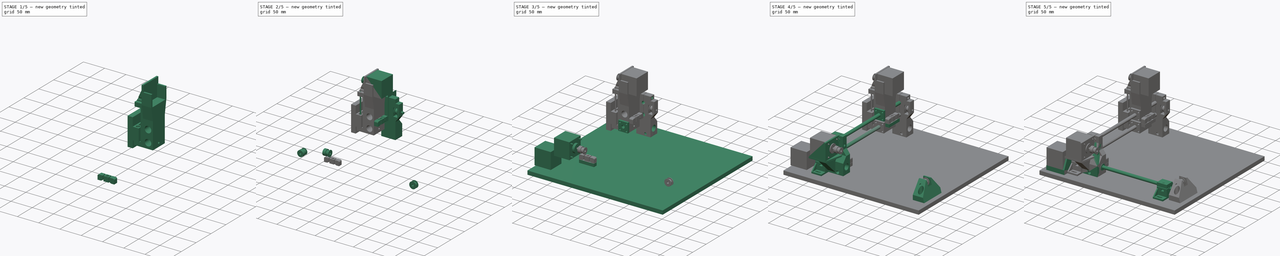
[diagram: build sequence overview — one tinted view per stage of 5, left to right]
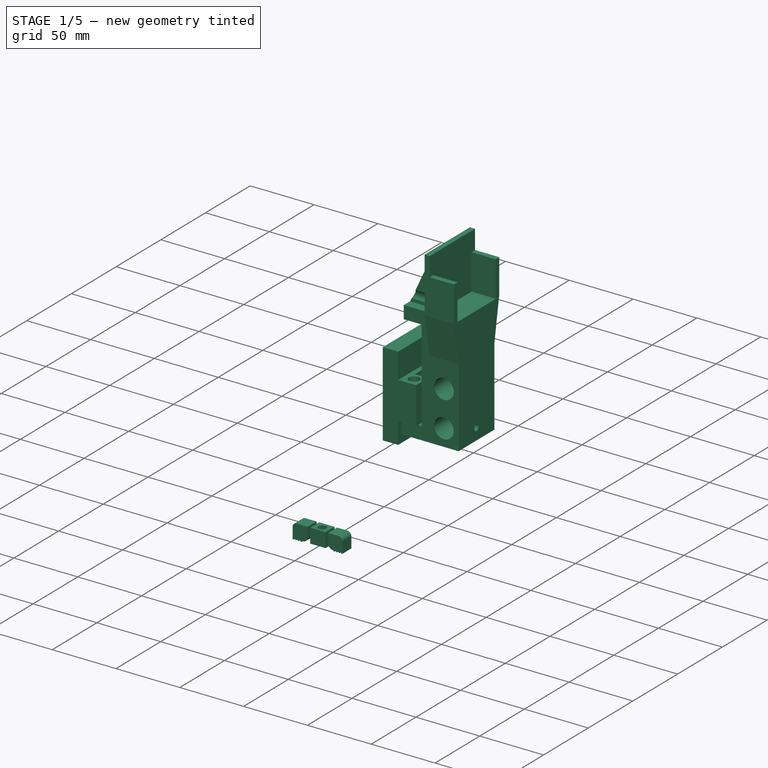
[diagram: stage 1 of 5 — iso view after this stage's code; geometry added in this stage tinted green]
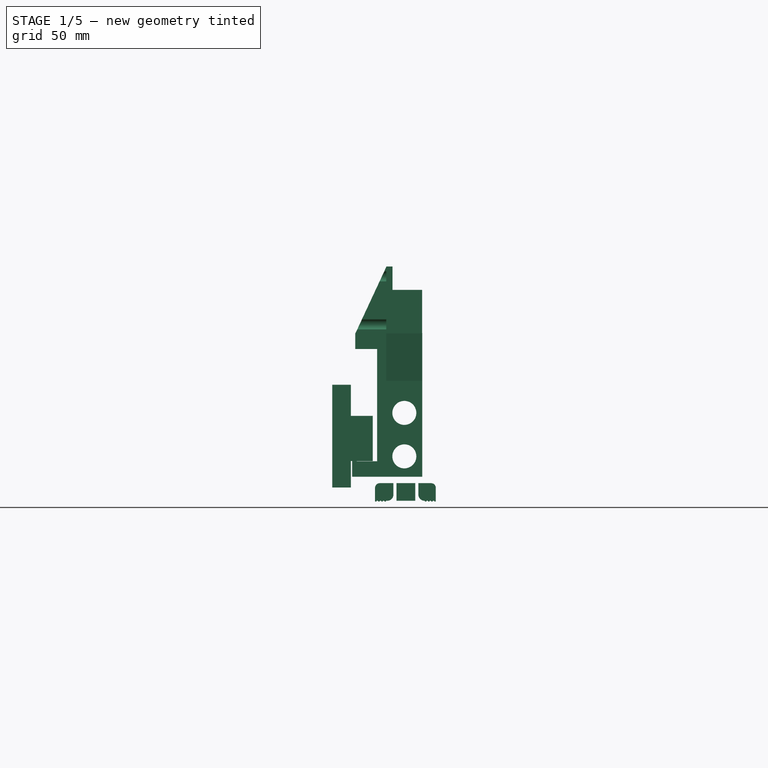
[diagram: stage 1 of 5 — front view after this stage's code; geometry added in this stage tinted green]
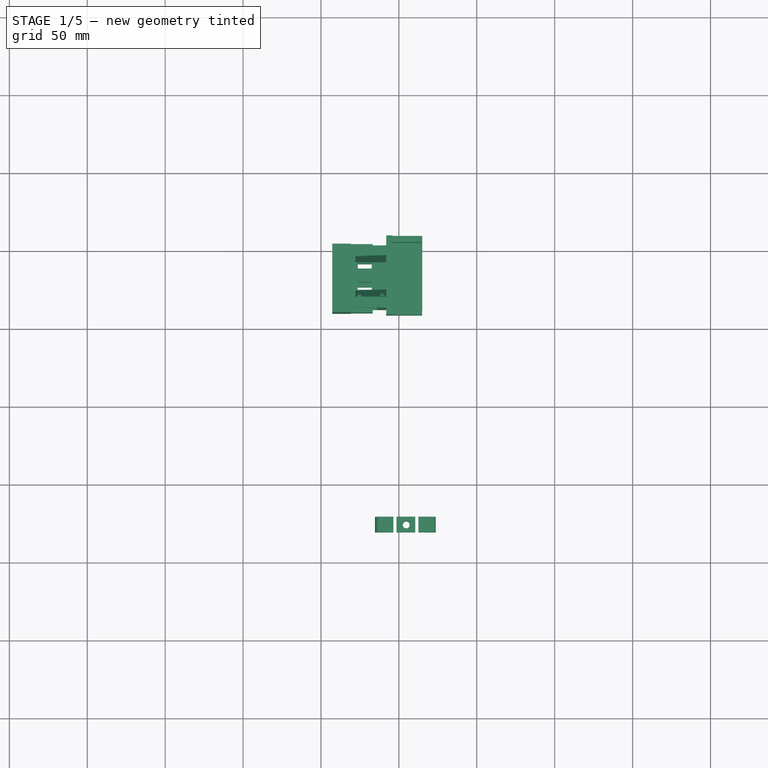
[diagram: stage 1 of 5 — top view after this stage's code; geometry added in this stage tinted green]
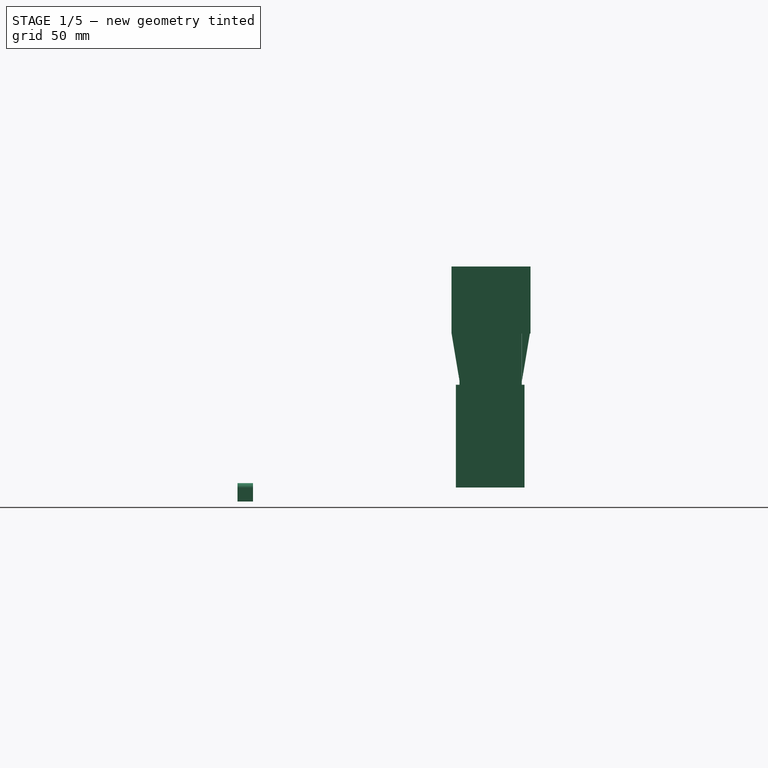
[diagram: stage 1 of 5 — right view after this stage's code; geometry added in this stage tinted green]
FCSTD DOCUMENT  (FreeCAD 0.18R4 (GitTag))
Label: STANOK
License: All rights reserved
LicenseURL: http://en.wikipedia.org/wiki/All_rights_reserved
objects: Part::Cylinder×154, Part::Cut×118, Part::Box×77, Part::MultiFuse×71, Part::Extrusion×34, Sketcher::SketchObject×28, Part::Cone×13, Part::RegularPolygon×12, Part::Fillet×4
note: 511 computed .brp shape members not serialized (recipe doc carries the construction recipe); baked Part::Feature solids carry a one-line shape summary decoded from their .brp

FEATURE [Sketcher::SketchObject] Sketch042
  Placement = pos=(0,0,0) rot=(0.57735,0.57735,0.57735;2.0944rad)
FEATURE [Sketcher::SketchObject] Sketch043
  Placement = pos=(0,0,0) rot=(0.57735,0.57735,0.57735;2.0944rad)
  sketch-geometry (3):
    g0: LineSegment StartX=19.2318 StartY=26.1771 StartZ=0 EndX=29.1369 EndY=38.5893 EndZ=0
    g1: LineSegment StartX=19.2318 StartY=26.1771 StartZ=0 EndX=19.2318 EndY=38.5893 EndZ=0
    g2: LineSegment StartX=29.1369 StartY=38.5893 StartZ=0 EndX=19.2318 EndY=38.5893 EndZ=0
  constraints (9):
    c: Vertical(g1)
    c: DistanceX(g0) = 19.2318
    c: DistanceY(g0) = 26.1771
    c: Coincident(g1,g0)
    c: Angle(g0,g1) = 0.673523
    c: Distance(g0) = 15.88
    c: Horizontal(g2)
    c: Coincident(g0,g2)
    c: Coincident(g1,g2)
FEATURE [Part::RegularPolygon] RegularPolygon014  label="Правильный многоугольник014"
  AttacherType = Attacher::AttachEngine3D
  Circumradius = 3.4
  Polygon = 6
FEATURE [Part::Extrusion] Extrude047
  Base = -> RegularPolygon014
  Dir = (0,0,1)
  DirMode = 0
  FaceMakerClass = Part::FaceMakerBullseye
  LengthFwd = 15
  LengthRev = 0
  Placement = pos=(103.8,24.3,15.8) rot=(0,0,1;0rad)
  Solid = true
  Symmetric = false
FEATURE [Part::Box] Box058  label="Куб058"
  AttacherType = Attacher::AttachEngine3D
  Height = 15
  Length = 2
  Placement = pos=(110,19,25) rot=(0,0,1;0rad)
  Width = 11
FEATURE [Part::Box] Box059  label="Куб059"
  AttacherType = Attacher::AttachEngine3D
  Height = 15
  Length = 2
  Placement = pos=(96,19,25) rot=(0,0,1;0rad)
  Width = 11
FEATURE [Part::Box] Box057  label="Куб057"
  AttacherType = Attacher::AttachEngine3D
  Height = 11.3
  Length = 39
  Placement = pos=(84.8,19.5,26.9) rot=(0,0,1;0rad)
  Width = 10
FEATURE [Part::Cut] Cut140
  Base = -> Box057
  Tool = -> Box058
FEATURE [Part::Cut] Cut141
  Base = -> Cut140
  Tool = -> Box059
FEATURE [Part::Fillet] Fillet
  Base = -> Cut141
  Edges = 2 edges r=4: [Edge9,Edge35]
FEATURE [Part::Box] Box060  label="Куб060"
  AttacherType = Attacher::AttachEngine3D
  Height = 0.5
  Length = 1
  Placement = pos=(122.8,19.5,38.2) rot=(0,0,1;0rad)
  Width = 10
FEATURE [Part::Box] Box061  label="Куб061"
  AttacherType = Attacher::AttachEngine3D
  Height = 0.5
  Length = 1
  Placement = pos=(120.8,19.5,38.2) rot=(0,0,1;0rad)
  Width = 10
FEATURE [Part::Box] Box062  label="Куб062"
  AttacherType = Attacher::AttachEngine3D
  Height = 0.5
  Length = 1
  Placement = pos=(118.8,19.5,38.2) rot=(0,0,1;0rad)
  Width = 10
FEATURE [Part::Box] Box063  label="Куб063"
  AttacherType = Attacher::AttachEngine3D
  Height = 0.5
  Length = 1
  Placement = pos=(116.8,19.5,38.2) rot=(0,0,1;0rad)
  Width = 10
FEATURE [Part::MultiFuse] Fusion073
  Shapes = -> [Box060,Box061,Box062,Box063]
FEATURE [Part::Box] Box064  label="Куб064"
  AttacherType = Attacher::AttachEngine3D
  Height = 0.5
  Length = 1
  Placement = pos=(122.8,19.5,38.2) rot=(0,0,1;0rad)
  Width = 10
FEATURE [Part::Box] Box065  label="Куб065"
  AttacherType = Attacher::AttachEngine3D
  Height = 0.5
  Length = 1
  Placement = pos=(120.8,19.5,38.2) rot=(0,0,1;0rad)
  Width = 10
FEATURE [Part::Box] Box066  label="Куб066"
  AttacherType = Attacher::AttachEngine3D
  Height = 0.5
  Length = 1
  Placement = pos=(116.8,19.5,38.2) rot=(0,0,1;0rad)
  Width = 10
FEATURE [Part::Box] Box067  label="Куб067"
  AttacherType = Attacher::AttachEngine3D
  Height = 0.5
  Length = 1
  Placement = pos=(118.8,19.5,38.2) rot=(0,0,1;0rad)
  Width = 10
FEATURE [Part::MultiFuse] Fusion074
  Placement = pos=(-32,0,0) rot=(0,0,1;0rad)
  Shapes = -> [Box064,Box065,Box067,Box066]
FEATURE [Part::Cone] Cone017  label="Конус017"
  Angle = 360
  AttacherType = Attacher::AttachEngine3D
  Height = 5
  Placement = pos=(-24,26,-8) rot=(0,-1,0;1.5708rad)
  Radius1 = 2.2
  Radius2 = 4
FEATURE [Part::Cylinder] Cylinder155  label="Цилиндр137"
  Angle = 360
  AttacherType = Attacher::AttachEngine3D
  Height = 50
  Placement = pos=(-24,26,-8) rot=(0,1,0;1.5708rad)
  Radius = 2.2
FEATURE [Part::MultiFuse] Fusion075  label="Винт М4х50 пот006"
  Placement = pos=(111.8,-1.7,20.9) rot=(0,1,0;1.5708rad)
  Shapes = -> [Cone017,Cylinder155]
FEATURE [Part::Cut] Cut142
  Base = -> Fillet
  Tool = -> Extrude047
FEATURE [Part::Cut] Cut143
  Base = -> Cut142
  Tool = -> Fusion075
FEATURE [Part::MultiFuse] Fusion079
  Shapes = -> [Fusion073,Cut143]
FEATURE [Part::Box] Box071  label="Куб071"
  AttacherType = Attacher::AttachEngine3D
  Height = 92
  Length = 29
  Placement = pos=(86,162,42) rot=(0,0,1;0rad)
  Width = 40
FEATURE [Part::Box] Box086  label="Куб086"
  AttacherType = Attacher::AttachEngine3D
  Height = 29
  Length = 14
  Placement = pos=(70.2,157.3,52.1) rot=(0,0,1;0rad)
  Width = 44
FEATURE [Part::RegularPolygon] RegularPolygon016  label="Правильный многоугольник016"
  AttacherType = Attacher::AttachEngine3D
  Circumradius = 4.8
  Polygon = 6
FEATURE [Part::Extrusion] Extrude063
  Base = -> RegularPolygon016
  Dir = (0,0,1)
  DirMode = 0
  FaceMakerClass = Part::FaceMakerBullseye
  LengthFwd = 5.5
  LengthRev = 0
  Placement = pos=(67.4,196.9,69.7) rot=(0.57735,0.57735,-0.57735;4.18879rad)
  Solid = true
  Symmetric = false
FEATURE [Part::Box] Box087  label="Куб087"
  AttacherType = Attacher::AttachEngine3D
  Height = 14
  Length = 10
  Placement = pos=(86,162,124) rot=(0,-1,0;1.5708rad)
  Width = 40
FEATURE [Part::Box] Box088  label="Куб088"
  AttacherType = Attacher::AttachEngine3D
  Height = 16
  Length = 10
  Placement = pos=(86,162,42) rot=(0,-1,0;1.5708rad)
  Width = 40
FEATURE [Part::MultiFuse] Fusion093
  Shapes = -> [Box071,Box087]
FEATURE [Part::Box] Box089  label="Куб089"
  AttacherType = Attacher::AttachEngine3D
  Height = 66
  Length = 12
  Placement = pos=(58.2,157.3,35.1) rot=(0,0,1;0rad)
  Width = 44
FEATURE [Part::MultiFuse] Fusion098
  Placement = pos=(0,2.4,2.4) rot=(0,0,1;0rad)
  Shapes = -> [Box089,Box086]
FEATURE [Part::Cylinder] Cylinder244  label="Цилиндр184"
  Angle = 360
  AttacherType = Attacher::AttachEngine3D
  Height = 14
  Placement = pos=(73.3,182,52.5) rot=(0,1,0;1.5708rad)
  Radius = 11
FEATURE [Part::Box] Box093  label="Куб093"
  AttacherType = Attacher::AttachEngine3D
  Height = 13
  Length = 9
  Placement = pos=(73.56,173.5,122.9) rot=(0,0,1;0rad)
  Width = 5
FEATURE [Part::Box] Box094  label="Куб094"
  AttacherType = Attacher::AttachEngine3D
  Height = 13
  Length = 9
  Placement = pos=(73.6,186.2,122.8) rot=(0,0,1;0rad)
  Width = 5
FEATURE [Part::Box] Box095  label="Куб095"
  AttacherType = Attacher::AttachEngine3D
  Height = 14
  Length = 11
  Placement = pos=(73,172.1,40.2) rot=(0,0,1;0rad)
  Width = 20
FEATURE [Part::Cylinder] Cylinder245  label="Цилиндр185"
  Angle = 360
  AttacherType = Attacher::AttachEngine3D
  Height = 3
  Placement = pos=(70,182.1,51.2) rot=(0,1,0;1.5708rad)
  Radius = 9
FEATURE [Part::Cylinder] Cylinder246  label="Цилиндр186"
  Angle = 360
  AttacherType = Attacher::AttachEngine3D
  Height = 49
  Placement = pos=(68.4,182.1,51.2) rot=(0,1,0;1.5708rad)
  Radius = 2.5
FEATURE [Part::Cut] Cut174
  Base = -> Fusion098
  Placement = pos=(0,0,-2.4) rot=(0,0,1;0rad)
  Tool = -> Cylinder244
FEATURE [Part::Box] Box097  label="Куб097"
  AttacherType = Attacher::AttachEngine3D
  Height = 37
  Length = 15
  Placement = pos=(74,173.1,48.6) rot=(0,0,1;0rad)
  Width = 18
FEATURE [Part::Cylinder] Cylinder248  label="Цилиндр188"
  Angle = 360
  AttacherType = Attacher::AttachEngine3D
  Height = 35.6
  Placement = pos=(76.8,166.7,49) rot=(0,0,1;0rad)
  Radius = 4.1
FEATURE [Part::Cylinder] Cylinder249  label="Цилиндр189"
  Angle = 360
  AttacherType = Attacher::AttachEngine3D
  Height = 35.6
  Placement = pos=(76.8,197.2,49) rot=(0,0,1;0rad)
  Radius = 4.1
FEATURE [Part::Box] Box098  label="Куб098"
  AttacherType = Attacher::AttachEngine3D
  Height = 28
  Length = 19
  Placement = pos=(95.9,203.6,134) rot=(0,0,1;0rad)
  Width = 4
FEATURE [Part::Box] Box099  label="Куб099"
  AttacherType = Attacher::AttachEngine3D
  Height = 28
  Length = 19
  Placement = pos=(95.9,156.9,134) rot=(0,0,1;0rad)
  Width = 4
FEATURE [Part::Box] Box100  label="Куб100"
  AttacherType = Attacher::AttachEngine3D
  Height = 43
  Length = 50.7
  Placement = pos=(91.9,207.6,134) rot=(0,0,-1;1.5708rad)
  Width = 4
FEATURE [Sketcher::SketchObject] Sketch046
  Placement = pos=(0,0,0) rot=(0.57735,0.57735,0.57735;2.0944rad)
  sketch-geometry (3):
    g0: LineSegment StartX=156.895 StartY=134.098 StartZ=0 EndX=162.095 EndY=134.098 EndZ=0
    g1: LineSegment StartX=162.095 StartY=134.098 StartZ=0 EndX=162.095 EndY=103.098 EndZ=0
    g2: LineSegment StartX=156.895 StartY=134.098 StartZ=0 EndX=162.095 EndY=103.098 EndZ=0
  constraints (9):
    c: Horizontal(g0)
    c: DistanceX(g0) = 162.095
    c: DistanceY(g0) = 134.098
    c: Vertical(g1)
    c: DistanceX(g0,g0) = 5.2
    c: Coincident(g0,g1)
    c: DistanceY(g1,g1) = 31
    c: Coincident(g2,g1)
    c: Coincident(g0,g2)
FEATURE [Part::Extrusion] Extrude064
  Base = -> Sketch046
  Dir = (1,0,0)
  DirMode = 0
  FaceMakerClass = Part::FaceMakerBullseye
  LengthFwd = 23
  LengthRev = 0
  Placement = pos=(91.9,0,0) rot=(0,0,1;0rad)
  Solid = true
  Symmetric = false
FEATURE [Sketcher::SketchObject] Sketch047
  Placement = pos=(0,0,0) rot=(0.57735,0.57735,0.57735;2.0944rad)
  sketch-geometry (3):
    g0: LineSegment StartX=156.895 StartY=134.098 StartZ=0 EndX=162.095 EndY=134.098 EndZ=0
    g1: LineSegment StartX=162.095 StartY=134.098 StartZ=0 EndX=162.095 EndY=103.098 EndZ=0
    g2: LineSegment StartX=156.895 StartY=134.098 StartZ=0 EndX=162.095 EndY=103.098 EndZ=0
  constraints (9):
    c: Horizontal(g0)
    c: DistanceX(g0) = 162.095
    c: DistanceY(g0) = 134.098
    c: Vertical(g1)
    c: DistanceX(g0,g0) = 5.2
    c: Coincident(g0,g1)
    c: DistanceY(g1,g1) = 31
    c: Coincident(g2,g1)
    c: Coincident(g0,g2)
FEATURE [Part::Extrusion] Extrude065
  Base = -> Sketch047
  Dir = (1,0,0)
  DirMode = 0
  FaceMakerClass = Part::FaceMakerBullseye
  LengthFwd = 23
  LengthRev = 0
  Placement = pos=(115,364.1,0) rot=(0,0,1;3.14159rad)
  Solid = true
  Symmetric = false
FEATURE [Sketcher::SketchObject] Sketch049
  MapMode = 5
  Placement = pos=(0,0,0) rot=(1,0,0;1.5708rad)
  sketch-geometry (3):
    g0: LineSegment StartX=91.9685 StartY=133.905 StartZ=0 EndX=72.0285 EndY=133.905 EndZ=0
    g1: LineSegment StartX=91.9685 StartY=133.905 StartZ=0 EndX=91.9685 EndY=176.786 EndZ=0
    g2: LineSegment StartX=91.9685 StartY=176.786 StartZ=0 EndX=72.0285 EndY=133.905 EndZ=0
  constraints (8):
    c: Horizontal(g0)
    c: DistanceX(g0) = 91.9685
    c: DistanceY(g0) = 133.905
    c: DistanceX(g0,g0) = 19.94
    c: Vertical(g1)
    c: Coincident(g0,g1)
    c: Coincident(g0,g2)
    c: Coincident(g1,g2)
FEATURE [Part::Extrusion] Extrude066
  Base = -> Sketch049
  Dir = (0,1,0)
  DirMode = 0
  FaceMakerClass = Part::FaceMakerBullseye
  LengthFwd = 4
  LengthRev = 0
  Placement = pos=(0,191.1,0) rot=(0,0,1;0rad)
  Solid = true
  Symmetric = false
FEATURE [Sketcher::SketchObject] Sketch050
  MapMode = 5
  Placement = pos=(0,0,0) rot=(1,0,0;1.5708rad)
  sketch-geometry (3):
    g0: LineSegment StartX=91.9685 StartY=133.905 StartZ=0 EndX=72.0285 EndY=133.905 EndZ=0
    g1: LineSegment StartX=91.9685 StartY=133.905 StartZ=0 EndX=91.9685 EndY=176.786 EndZ=0
    g2: LineSegment StartX=91.9685 StartY=176.786 StartZ=0 EndX=72.0285 EndY=133.905 EndZ=0
  constraints (8):
    c: Horizontal(g0)
    c: DistanceX(g0) = 91.9685
    c: DistanceY(g0) = 133.905
    c: DistanceX(g0,g0) = 19.94
    c: Vertical(g1)
    c: Coincident(g0,g1)
    c: Coincident(g0,g2)
    c: Coincident(g1,g2)
FEATURE [Part::Extrusion] Extrude067
  Base = -> Sketch050
  Dir = (0,1,0)
  DirMode = 0
  FaceMakerClass = Part::FaceMakerBullseye
  LengthFwd = 4
  LengthRev = 0
  Placement = pos=(0,169,0) rot=(0,0,1;0rad)
  Solid = true
  Symmetric = false
FEATURE [Part::Cylinder] Cylinder250  label="Цилиндр190"
  Angle = 360
  AttacherType = Attacher::AttachEngine3D
  Height = 10
  Placement = pos=(81.9,166.6,170.6) rot=(0,1,0;1.5708rad)
  Radius = 4
FEATURE [Part::Cylinder] Cylinder251  label="Цилиндр191"
  Angle = 360
  AttacherType = Attacher::AttachEngine3D
  Height = 21
  Placement = pos=(71,166.6,139.8) rot=(0,1,0;1.5708rad)
  Radius = 4
FEATURE [Part::Cylinder] Cylinder252  label="Цилиндр192"
  Angle = 360
  AttacherType = Attacher::AttachEngine3D
  Height = 10
  Placement = pos=(81.9,197.5,170.6) rot=(0,1,0;1.5708rad)
  Radius = 4
FEATURE [Part::Cylinder] Cylinder253  label="Цилиндр193"
  Angle = 360
  AttacherType = Attacher::AttachEngine3D
  Height = 21
  Placement = pos=(71,197.5,139.7) rot=(0,1,0;1.5708rad)
  Radius = 4
FEATURE [Part::Cut] Cut183
  Base = -> Extrude066
  Tool = -> Cylinder252
FEATURE [Part::Cut] Cut184
  Base = -> Cut183
  Tool = -> Cylinder253
FEATURE [Part::Cut] Cut185
  Base = -> Extrude067
  Tool = -> Cylinder250
FEATURE [Part::Cut] Cut186
  Base = -> Cut185
  Tool = -> Cylinder251
FEATURE [Part::Cylinder] Cylinder254  label="Цилиндр194"
  Angle = 360
  AttacherType = Attacher::AttachEngine3D
  Height = 47
  Placement = pos=(103.5,161,83) rot=(-1,0,0;1.5708rad)
  Radius = 7.7
FEATURE [Part::Cylinder] Cylinder255  label="Цилиндр195"
  Angle = 360
  AttacherType = Attacher::AttachEngine3D
  Height = 47
  Placement = pos=(103.5,161,55.1) rot=(-1,0,0;1.5708rad)
  Radius = 7.7
FEATURE [Part::RegularPolygon] RegularPolygon017  label="Правильный многоугольник017"
  AttacherType = Attacher::AttachEngine3D
  Circumradius = 4.8
  Polygon = 6
FEATURE [Part::Extrusion] Extrude068
  Base = -> RegularPolygon017
  Dir = (0,0,1)
  DirMode = 0
  FaceMakerClass = Part::FaceMakerBullseye
  LengthFwd = 5.5
  LengthRev = 0
  Placement = pos=(67.4,166.9,69.7) rot=(0.57735,0.57735,-0.57735;4.18879rad)
  Solid = true
  Symmetric = false
FEATURE [Part::Cylinder] Cylinder264  label="Цилиндр202"
  Angle = 360
  AttacherType = Attacher::AttachEngine3D
  Height = 15
  Placement = pos=(70.2,196.9,69.6) rot=(0,-1,0;1.5708rad)
  Radius = 3
FEATURE [Part::Cylinder] Cylinder265  label="Цилиндр203"
  Angle = 360
  AttacherType = Attacher::AttachEngine3D
  Height = 15
  Placement = pos=(70.2,166.8,69.6) rot=(0,-1,0;1.5708rad)
  Radius = 3
FEATURE [Part::Cut] Cut201
  Base = -> Fusion093
  Tool = -> Box094
FEATURE [Part::Cut] Cut202
  Base = -> Cut201
  Tool = -> Box093
FEATURE [Part::Cut] Cut204
  Base = -> Box088
  Tool = -> Box095
FEATURE [Part::MultiFuse] Fusion110
  Shapes = -> [Cut204,Cylinder245]
FEATURE [Part::Cut] Cut206
  Base = -> Cut202
  Tool = -> Cylinder254
FEATURE [Part::Cut] Cut207
  Base = -> Cut206
  Tool = -> Cylinder255
FEATURE [Part::MultiFuse] Fusion111
  Shapes = -> [Cut207,Fusion110]
FEATURE [Part::Cut] Cut208
  Base = -> Fusion111
  Tool = -> Cylinder246
FEATURE [Part::MultiFuse] Fusion112
  Shapes = -> [Cut208,Extrude064,Extrude065]
FEATURE [Part::Cut] Cut211
  Base = -> Cut174
  Placement = pos=(-1,0,0) rot=(0,0,1;0rad)
  Tool = -> Box097
FEATURE [Part::Cut] Cut212
  Base = -> Cut211
  Tool = -> Cylinder249
FEATURE [Part::Cut] Cut213
  Base = -> Cut212
  Tool = -> Cylinder248
FEATURE [Part::Cut] Cut214
  Base = -> Cut213
  Tool = -> Cylinder264
FEATURE [Part::Cut] Cut215
  Base = -> Cut214
  Tool = -> Cylinder265
FEATURE [Part::Cut] Cut216
  Base = -> Cut215
  Tool = -> Extrude063
FEATURE [Part::Cut] Cut217
  Base = -> Cut216
  Tool = -> Extrude068
FEATURE [Part::Box] Box102  label="Куб102"
  AttacherType = Attacher::AttachEngine3D
  Height = 10
  Length = 10
  Placement = pos=(73,176.1,66) rot=(0,0,1;0rad)
  Width = 12
FEATURE [Part::MultiFuse] Fusion080
  Placement = pos=(208.5,0,64.8) rot=(0,1,0;3.14159rad)
  Shapes = -> [Fusion074,Fusion079]
FEATURE [Part::Fillet] Fillet002
  Base = -> Fusion080
  Edges = 2 edges r=3: [Edge14,Edge122]
FEATURE [Part::Box] Box103  label="Куб103"
  AttacherType = Attacher::AttachEngine3D
  Height = 1.5
  Length = 10
  Placement = pos=(73,176.1,76) rot=(0,0,1;0rad)
  Width = 1.5
FEATURE [Part::Box] Box104  label="Куб104"
  AttacherType = Attacher::AttachEngine3D
  Height = 1.5
  Length = 10
  Placement = pos=(73,179.1,76) rot=(0,0,1;0rad)
  Width = 1.5
FEATURE [Part::Box] Box105  label="Куб105"
  AttacherType = Attacher::AttachEngine3D
  Height = 1.5
  Length = 10
  Placement = pos=(73,182.1,76) rot=(0,0,1;0rad)
  Width = 1.5
FEATURE [Part::Box] Box106  label="Куб106"
  AttacherType = Attacher::AttachEngine3D
  Height = 1.5
  Length = 10
  Placement = pos=(73,185.1,76) rot=(0,0,1;0rad)
  Width = 1.5
FEATURE [Part::MultiFuse] Fusion116
  Placement = pos=(0,0,-11.5) rot=(0,0,1;0rad)
  Shapes = -> [Box103,Box104,Box105,Box106]
FEATURE [Part::Box] Box107  label="Куб107"
  AttacherType = Attacher::AttachEngine3D
  Height = 1.5
  Length = 10
  Placement = pos=(73,182.1,76) rot=(0,0,1;0rad)
  Width = 1.5
FEATURE [Part::Box] Box108  label="Куб108"
  AttacherType = Attacher::AttachEngine3D
  Height = 1.5
  Length = 10
  Placement = pos=(73,176.1,76) rot=(0,0,1;0rad)
  Width = 1.5
FEATURE [Part::Box] Box109  label="Куб109"
  AttacherType = Attacher::AttachEngine3D
  Height = 1.5
  Length = 10
  Placement = pos=(73,179.1,76) rot=(0,0,1;0rad)
  Width = 1.5
FEATURE [Part::Box] Box110  label="Куб110"
  AttacherType = Attacher::AttachEngine3D
  Height = 1.5
  Length = 10
  Placement = pos=(73,185.1,76) rot=(0,0,1;0rad)
  Width = 1.5
FEATURE [Part::MultiFuse] Fusion117
  Shapes = -> [Box108,Box109,Box107,Box110]
FEATURE [Part::MultiFuse] Fusion118
  Shapes = -> [Box102,Fusion117,Fusion116]
FEATURE [Part::Cylinder] Cylinder290  label="Цилиндр228"
  Angle = 360
  AttacherType = Attacher::AttachEngine3D
  Height = 15
  Placement = pos=(78,182,64) rot=(0,0,1;0rad)
  Radius = 1.6
FEATURE [Part::Cut] Cut218
  Base = -> Fusion118
  Tool = -> Cylinder290
FEATURE [Part::MultiFuse] Fusion119
  Shapes = -> [Cut217,Cut218]
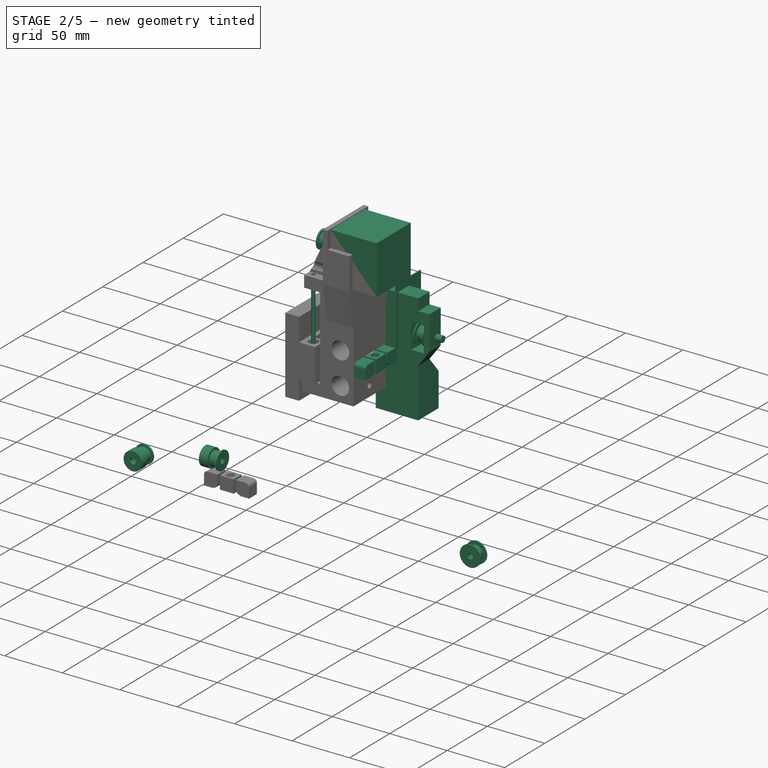
[diagram: stage 2 of 5 — iso view after this stage's code; geometry added in this stage tinted green]
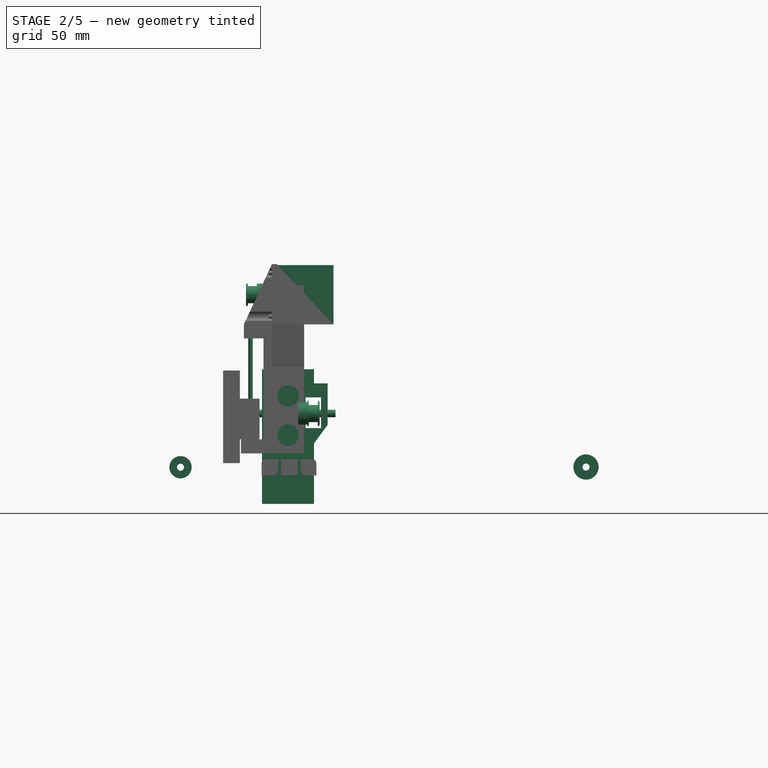
[diagram: stage 2 of 5 — front view after this stage's code; geometry added in this stage tinted green]
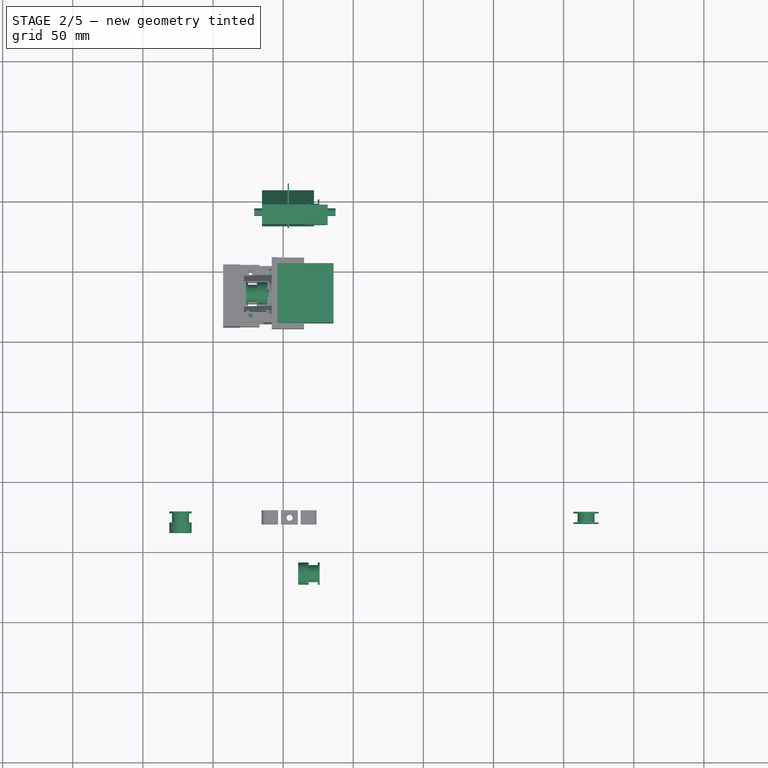
[diagram: stage 2 of 5 — top view after this stage's code; geometry added in this stage tinted green]
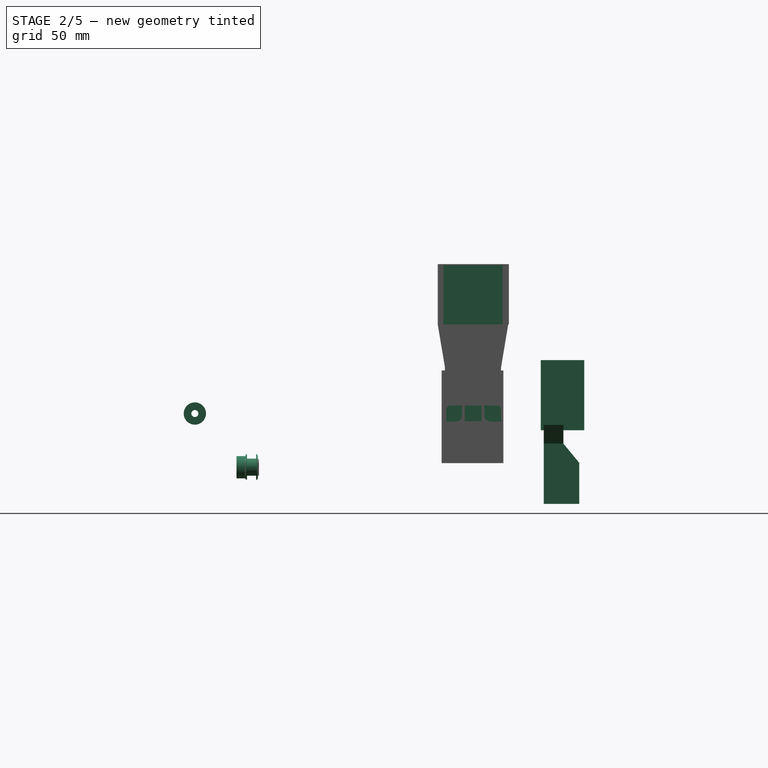
[diagram: stage 2 of 5 — right view after this stage's code; geometry added in this stage tinted green]
FEATURE [Sketcher::SketchObject] Sketch037
  Placement = pos=(0,0,0) rot=(0.57735,0.57735,0.57735;2.0944rad)
  sketch-geometry (6):
    g0: LineSegment StartX=19.5 StartY=6 StartZ=0 EndX=19.5 EndY=102 EndZ=0
    g1: LineSegment StartX=19.5 StartY=102 StartZ=0 EndX=5.5 EndY=102 EndZ=0
    g2: LineSegment StartX=5.5 StartY=102 StartZ=0 EndX=5.5 EndY=49 EndZ=0
    g3: LineSegment StartX=5.5 StartY=49 StartZ=0 EndX=-5.77687 EndY=35.3444 EndZ=0
    g4: LineSegment StartX=-5.77687 StartY=35.3444 StartZ=0 EndX=-5.77687 EndY=6 EndZ=0
    g5: LineSegment StartX=-5.77687 StartY=6 StartZ=0 EndX=19.5 EndY=6 EndZ=0
  constraints (18):
    c: Vertical(g0)
    c: DistanceX(g0) = 19.5
    c: DistanceY(g0) = 6
    c: DistanceY(g0,g0) = 96
    c: Horizontal(g1)
    c: Coincident(g1,g0)
    c: DistanceX(g1,g1) = 14
    c: Vertical(g2)
    c: Coincident(g2,g1)
    c: DistanceY(g2,g2) = 53
    c: Coincident(g3,g2)
    c: Vertical(g4)
    c: Coincident(g4,g3)
    c: DistanceY(g4,g0) = 0
    c: Coincident(g5,g4)
    c: Coincident(g0,g5)
    c: Angle(g2,g3) = 2.45131
    c: Distance(g3) = 17.71
FEATURE [Part::Extrusion] Extrude043
  Base = -> Sketch037
  Dir = (-1,0,0)
  DirMode = 0
  FaceMakerClass = Part::FaceMakerBullseye
  LengthFwd = 37
  LengthRev = 0
  Placement = pos=(85,252,0) rot=(0,0,1;3.14159rad)
  Solid = true
  Symmetric = false
FEATURE [Part::Box] Box051  label="Куб051"
  AttacherType = Attacher::AttachEngine3D
  Height = 22
  Length = 11
  Placement = pos=(116,230,60) rot=(0,0,1;0rad)
  Width = 19
FEATURE [Sketcher::SketchObject] Sketch038
  Placement = pos=(0,0,0) rot=(1,0,0;1.5708rad)
  sketch-geometry (4):
    g0: LineSegment StartX=131.777 StartY=62.3722 StartZ=0 EndX=121.701 EndY=48.6802 EndZ=0
    g1: LineSegment StartX=131.777 StartY=62.3722 StartZ=0 EndX=131.777 EndY=91.9722 EndZ=0
    g2: LineSegment StartX=131.777 StartY=91.9722 StartZ=0 EndX=121.701 EndY=91.9722 EndZ=0
    g3: LineSegment StartX=121.701 StartY=91.9722 StartZ=0 EndX=121.701 EndY=48.6802 EndZ=0
  constraints (12):
    c: DistanceX(g0) = 121.701
    c: DistanceY(g0) = 48.6802
    c: Angle(g0,g-1) = 2.20522
    c: Vertical(g1)
    c: Distance(g0) = 17
    c: Coincident(g0,g1)
    c: DistanceY(g1,g1) = 29.6
    c: Horizontal(g2)
    c: Coincident(g2,g1)
    c: Vertical(g3)
    c: Coincident(g3,g0)
    c: Coincident(g3,g2)
FEATURE [Part::Extrusion] Extrude044
  Base = -> Sketch038
  Dir = (0,1,0)
  DirMode = 0
  FaceMakerClass = Part::FaceMakerBullseye
  LengthFwd = 14
  LengthRev = 0
  Placement = pos=(0,232.5,0) rot=(0,0,1;0rad)
  Solid = true
  Symmetric = false
FEATURE [Part::MultiFuse] Fusion063
  Shapes = -> [Extrude043,Extrude044]
FEATURE [Part::Cut] Cut124
  Base = -> Fusion063
  Tool = -> Box051
FEATURE [Part::Box] Box052  label="Куб052"
  AttacherType = Attacher::AttachEngine3D
  Height = 50
  Length = 1
  Placement = pos=(103.2,230.4,58.5) rot=(0,0,1;0rad)
  Width = 31
FEATURE [Part::Cylinder] Cylinder143  label="Цилиндр125"
  Angle = 360
  AttacherType = Attacher::AttachEngine3D
  Height = 58
  Placement = pos=(79.4,241.5,70.45) rot=(0,1,0;1.5708rad)
  Radius = 2.7
FEATURE [Part::Cylinder] Cylinder216  label="Направляющая_3мм_007"
  Angle = 360
  AttacherType = Attacher::AttachEngine3D
  Height = 97
  Placement = pos=(76.8,166.7,39) rot=(0,0,1;0rad)
  Radius = 1.6
FEATURE [Part::Box] Box074  label="Куб074"
  AttacherType = Attacher::AttachEngine3D
  Height = 15
  Length = 2
  Placement = pos=(110,19,25) rot=(0,0,1;0rad)
  Width = 11
FEATURE [Part::Box] Box075  label="Куб075"
  AttacherType = Attacher::AttachEngine3D
  Height = 11.3
  Length = 39
  Placement = pos=(84.8,19.5,26.9) rot=(0,0,1;0rad)
  Width = 10
FEATURE [Part::Cut] Cut155
  Base = -> Box075
  Tool = -> Box074
FEATURE [Part::Box] Box076  label="Куб076"
  AttacherType = Attacher::AttachEngine3D
  Height = 15
  Length = 2
  Placement = pos=(96,19,25) rot=(0,0,1;0rad)
  Width = 11
FEATURE [Part::Cut] Cut156
  Base = -> Cut155
  Tool = -> Box076
FEATURE [Part::Fillet] Fillet001
  Base = -> Cut156
  Edges = 2 edges r=4: [Edge9,Edge35]
FEATURE [Part::Box] Box077  label="Куб077"
  AttacherType = Attacher::AttachEngine3D
  Height = 0.5
  Length = 1
  Placement = pos=(122.8,19.5,38.2) rot=(0,0,1;0rad)
  Width = 10
FEATURE [Part::Box] Box078  label="Куб078"
  AttacherType = Attacher::AttachEngine3D
  Height = 0.5
  Length = 1
  Placement = pos=(120.8,19.5,38.2) rot=(0,0,1;0rad)
  Width = 10
FEATURE [Part::Box] Box079  label="Куб079"
  AttacherType = Attacher::AttachEngine3D
  Height = 0.5
  Length = 1
  Placement = pos=(118.8,19.5,38.2) rot=(0,0,1;0rad)
  Width = 10
FEATURE [Part::RegularPolygon] RegularPolygon015  label="Правильный многоугольник015"
  AttacherType = Attacher::AttachEngine3D
  Circumradius = 3.4
  Polygon = 6
FEATURE [Part::Extrusion] Extrude048
  Base = -> RegularPolygon015
  Dir = (0,0,1)
  DirMode = 0
  FaceMakerClass = Part::FaceMakerBullseye
  LengthFwd = 15
  LengthRev = 0
  Placement = pos=(103.8,24.3,15.8) rot=(0,0,1;0rad)
  Solid = true
  Symmetric = false
FEATURE [Part::Cut] Cut157
  Base = -> Fillet001
  Tool = -> Extrude048
FEATURE [Part::Cone] Cone019  label="Конус019"
  Angle = 360
  AttacherType = Attacher::AttachEngine3D
  Height = 5
  Placement = pos=(-24,26,-8) rot=(0,-1,0;1.5708rad)
  Radius1 = 2.2
  Radius2 = 4
FEATURE [Part::Box] Box080  label="Куб080"
  AttacherType = Attacher::AttachEngine3D
  Height = 0.5
  Length = 1
  Placement = pos=(120.8,19.5,38.2) rot=(0,0,1;0rad)
  Width = 10
FEATURE [Part::Box] Box081  label="Куб081"
  AttacherType = Attacher::AttachEngine3D
  Height = 0.5
  Length = 1
  Placement = pos=(116.8,19.5,38.2) rot=(0,0,1;0rad)
  Width = 10
FEATURE [Part::Box] Box082  label="Куб082"
  AttacherType = Attacher::AttachEngine3D
  Height = 0.5
  Length = 1
  Placement = pos=(116.8,19.5,38.2) rot=(0,0,1;0rad)
  Width = 10
FEATURE [Part::MultiFuse] Fusion087
  Shapes = -> [Box077,Box078,Box079,Box082]
FEATURE [Part::Box] Box083  label="Куб083"
  AttacherType = Attacher::AttachEngine3D
  Height = 0.5
  Length = 1
  Placement = pos=(122.8,19.5,38.2) rot=(0,0,1;0rad)
  Width = 10
FEATURE [Part::Cylinder] Cylinder218  label="Цилиндр157"
  Angle = 360
  AttacherType = Attacher::AttachEngine3D
  Height = 50
  Placement = pos=(-24,26,-8) rot=(0,1,0;1.5708rad)
  Radius = 2.2
FEATURE [Part::Box] Box084  label="Куб084"
  AttacherType = Attacher::AttachEngine3D
  Height = 0.5
  Length = 1
  Placement = pos=(118.8,19.5,38.2) rot=(0,0,1;0rad)
  Width = 10
FEATURE [Part::MultiFuse] Fusion088
  Placement = pos=(-32,0,0) rot=(0,0,1;0rad)
  Shapes = -> [Box083,Box080,Box084,Box081]
FEATURE [Part::MultiFuse] Fusion091  label="Винт М4х50 пот008"
  Placement = pos=(111.8,-1.7,20.9) rot=(0,1,0;1.5708rad)
  Shapes = -> [Cone019,Cylinder218]
FEATURE [Part::Cut] Cut158
  Base = -> Cut157
  Tool = -> Fusion091
FEATURE [Part::MultiFuse] Fusion090
  Shapes = -> [Fusion087,Cut158]
FEATURE [Part::MultiFuse] Fusion089
  Placement = pos=(96.5,78.2,103.1) rot=(0.707107,0.707107,0;3.14159rad)
  Shapes = -> [Fusion088,Fusion090]
FEATURE [Part::Fillet] Fillet003
  Base = -> Fusion089
  Edges = 2 edges r=3: [Edge14,Edge122]
  Placement = pos=(-1,0,0) rot=(0,0,1;0rad)
FEATURE [Part::Cylinder] Cylinder238  label="Цилиндр178"
  Angle = 360
  AttacherType = Attacher::AttachEngine3D
  Height = 6
  Placement = pos=(40,21.15,21.15) rot=(0,1,0;1.5708rad)
  Radius = 11.2
FEATURE [Part::Cylinder] Cylinder239  label="Цилиндр179"
  Angle = 360
  AttacherType = Attacher::AttachEngine3D
  Height = 6
  Placement = pos=(40,36.65,5.65) rot=(0,1,0;1.5708rad)
  Radius = 1.5
FEATURE [Part::Cylinder] Cylinder240  label="Цилиндр180"
  Angle = 360
  AttacherType = Attacher::AttachEngine3D
  Height = 6
  Placement = pos=(40,36.65,36.65) rot=(0,1,0;1.5708rad)
  Radius = 1.5
FEATURE [Part::Box] Box092  label="Куб092"
  AttacherType = Attacher::AttachEngine3D
  Height = 42.3
  Length = 40
  Width = 42.3
FEATURE [Part::Cylinder] Cylinder241  label="Цилиндр181"
  Angle = 360
  AttacherType = Attacher::AttachEngine3D
  Height = 6
  Placement = pos=(40,5.65,5.65) rot=(0,1,0;1.5708rad)
  Radius = 1.5
FEATURE [Part::Cylinder] Cylinder242  label="Цилиндр182"
  Angle = 360
  AttacherType = Attacher::AttachEngine3D
  Height = 6
  Placement = pos=(40,5.65,36.665) rot=(0,1,0;1.5708rad)
  Radius = 1.5
FEATURE [Part::Cylinder] Cylinder243  label="Цилиндр183"
  Angle = 360
  AttacherType = Attacher::AttachEngine3D
  Height = 21
  Placement = pos=(40,21.15,21.15) rot=(0,1,0;1.5708rad)
  Radius = 2.5
FEATURE [Part::MultiFuse] Fusion097  label="NEMA 17_2"
  Placement = pos=(135.9,203.3,134) rot=(0,0,1;3.14159rad)
  Shapes = -> [Box092,Cylinder242,Cylinder240,Cylinder238,Cylinder243,Cylinder241,Cylinder239]
FEATURE [Part::MultiFuse] Fusion100
  Shapes = -> [Box098,Box100,Box099,Cut186,Cut184]
FEATURE [Part::Cylinder] Cylinder256  label="Цилиндр196"
  Angle = 360
  AttacherType = Attacher::AttachEngine3D
  Height = 6
  Placement = pos=(40,36.65,5.65) rot=(0,1,0;1.5708rad)
  Radius = 1.5
FEATURE [Part::Cylinder] Cylinder257  label="Цилиндр197"
  Angle = 360
  AttacherType = Attacher::AttachEngine3D
  Height = 6
  Placement = pos=(40,21.15,21.15) rot=(0,1,0;1.5708rad)
  Radius = 11.2
FEATURE [Part::Cylinder] Cylinder258  label="Цилиндр198"
  Angle = 360
  AttacherType = Attacher::AttachEngine3D
  Height = 21
  Placement = pos=(40,21.15,21.15) rot=(0,1,0;1.5708rad)
  Radius = 2.5
FEATURE [Part::Box] Box101  label="Куб101"
  AttacherType = Attacher::AttachEngine3D
  Height = 42.3
  Length = 40
  Width = 42.3
FEATURE [Part::Cylinder] Cylinder259  label="Цилиндр199"
  Angle = 360
  AttacherType = Attacher::AttachEngine3D
  Height = 6
  Placement = pos=(40,5.65,5.65) rot=(0,1,0;1.5708rad)
  Radius = 1.5
FEATURE [Part::Cylinder] Cylinder260  label="Цилиндр200"
  Angle = 360
  AttacherType = Attacher::AttachEngine3D
  Height = 6
  Placement = pos=(40,36.65,36.65) rot=(0,1,0;1.5708rad)
  Radius = 1.5
FEATURE [Part::Cylinder] Cylinder261  label="Цилиндр201"
  Angle = 360
  AttacherType = Attacher::AttachEngine3D
  Height = 6
  Placement = pos=(40,5.65,36.665) rot=(0,1,0;1.5708rad)
  Radius = 1.5
FEATURE [Part::MultiFuse] Fusion103  label="NEMA 17_003"
  Placement = pos=(135.9,203.3,134) rot=(0,0,1;3.14159rad)
  Shapes = -> [Box101,Cylinder261,Cylinder260,Cylinder257,Cylinder258,Cylinder259,Cylinder256]
FEATURE [Part::Cylinder] Cylinder262  label="Направляющая_3мм_009"
  Angle = 360
  AttacherType = Attacher::AttachEngine3D
  Height = 90
  Placement = pos=(76.8,166.7,42.4) rot=(0,0,1;0rad)
  Radius = 1.6
FEATURE [Part::Cylinder] Cylinder263  label="Направляющая_3мм_010"
  Angle = 360
  AttacherType = Attacher::AttachEngine3D
  Height = 97
  Placement = pos=(76.8,197.2,39) rot=(0,0,1;0rad)
  Radius = 1.6
FEATURE [Part::Cylinder] Cylinder266  label="Цилиндр204"
  Angle = 360
  AttacherType = Attacher::AttachEngine3D
  Height = 7.5
  Radius = 7.95
FEATURE [Part::Cylinder] Cylinder267  label="Цилиндр205"
  Angle = 360
  AttacherType = Attacher::AttachEngine3D
  Height = 7.2
  Placement = pos=(0,0,7) rot=(0,0,1;0rad)
  Radius = 6.1
FEATURE [Part::Cylinder] Cylinder268  label="Цилиндр206"
  Angle = 360
  AttacherType = Attacher::AttachEngine3D
  Height = 1.3
  Placement = pos=(0,0,14) rot=(0,0,1;0rad)
  Radius = 7.95
FEATURE [Part::Cylinder] Cylinder269  label="Цилиндр207"
  Angle = 360
  AttacherType = Attacher::AttachEngine3D
  Height = 19.2
  Placement = pos=(0,0,-2) rot=(0,0,1;0rad)
  Radius = 2.5
FEATURE [Part::MultiFuse] Fusion104
  Shapes = -> [Cylinder266,Cylinder267,Cylinder268]
FEATURE [Part::Cut] Cut196  label="Шкив"
  Base = -> Fusion104
  Placement = pos=(26.85,13.4,32.15) rot=(1,0,0;4.71239rad)
  Tool = -> Cylinder269
FEATURE [Part::Cylinder] Cylinder270  label="Цилиндр208"
  Angle = 360
  AttacherType = Attacher::AttachEngine3D
  Height = 7.5
  Radius = 7.95
FEATURE [Part::Cylinder] Cylinder271  label="Цилиндр209"
  Angle = 360
  AttacherType = Attacher::AttachEngine3D
  Height = 19.2
  Placement = pos=(0,0,-2) rot=(0,0,1;0rad)
  Radius = 2.5
FEATURE [Part::Cylinder] Cylinder272  label="Цилиндр210"
  Angle = 360
  AttacherType = Attacher::AttachEngine3D
  Height = 7.2
  Placement = pos=(0,0,7) rot=(0,0,1;0rad)
  Radius = 6.1
FEATURE [Part::Cylinder] Cylinder273  label="Цилиндр211"
  Angle = 360
  AttacherType = Attacher::AttachEngine3D
  Height = 1.3
  Placement = pos=(0,0,14) rot=(0,0,1;0rad)
  Radius = 7.95
FEATURE [Part::MultiFuse] Fusion105
  Shapes = -> [Cylinder270,Cylinder272,Cylinder273]
FEATURE [Part::Cut] Cut197  label="Шкив001"
  Base = -> Fusion105
  Placement = pos=(88.85,182.14,155.15) rot=(0.57735,0.57735,-0.57735;4.18879rad)
  Tool = -> Cylinder271
FEATURE [Part::Cylinder] Cylinder274  label="Цилиндр212"
  Angle = 360
  AttacherType = Attacher::AttachEngine3D
  Height = 1
  Radius = 9
FEATURE [Part::Cylinder] Cylinder275  label="Цилиндр213"
  Angle = 360
  AttacherType = Attacher::AttachEngine3D
  Height = 6.5
  Placement = pos=(0,0,1) rot=(0,0,1;0rad)
  Radius = 6
FEATURE [Part::Cylinder] Cylinder276  label="Цилиндр214"
  Angle = 360
  AttacherType = Attacher::AttachEngine3D
  Height = 1
  Placement = pos=(0,0,7.5) rot=(0,0,1;0rad)
  Radius = 9
FEATURE [Part::Cylinder] Cylinder277  label="Цилиндр215"
  Angle = 360
  AttacherType = Attacher::AttachEngine3D
  Height = 14.5
  Placement = pos=(0,0,-2.4) rot=(0,0,1;0rad)
  Radius = 2.5
FEATURE [Part::MultiFuse] Fusion106
  Shapes = -> [Cylinder274,Cylinder275,Cylinder276]
FEATURE [Part::Cut] Cut198  label="Колесо"
  Base = -> Fusion106
  Placement = pos=(316,28.4,32.3) rot=(1,0,0;1.5708rad)
  Tool = -> Cylinder277
FEATURE [Part::Cylinder] Cylinder278  label="Цилиндр216"
  Angle = 360
  AttacherType = Attacher::AttachEngine3D
  Height = 7.5
  Radius = 7.95
FEATURE [Part::Cylinder] Cylinder279  label="Цилиндр217"
  Angle = 360
  AttacherType = Attacher::AttachEngine3D
  Height = 1.3
  Placement = pos=(0,0,14) rot=(0,0,1;0rad)
  Radius = 7.95
FEATURE [Part::Cylinder] Cylinder280  label="Цилиндр218"
  Angle = 360
  AttacherType = Attacher::AttachEngine3D
  Height = 19.2
  Placement = pos=(0,0,-2) rot=(0,0,1;0rad)
  Radius = 2.5
FEATURE [Part::Cylinder] Cylinder281  label="Цилиндр219"
  Angle = 360
  AttacherType = Attacher::AttachEngine3D
  Height = 7.2
  Placement = pos=(0,0,7) rot=(0,0,1;0rad)
  Radius = 6.1
FEATURE [Part::MultiFuse] Fusion107
  Shapes = -> [Cylinder278,Cylinder281,Cylinder279]
FEATURE [Part::Cut] Cut199  label="Шкив002"
  Base = -> Fusion107
  Placement = pos=(110.75,-16.26,70.45) rot=(0.57735,-0.57735,0.57735;4.18879rad)
  Tool = -> Cylinder280
FEATURE [Part::Cylinder] Cylinder282  label="Цилиндр220"
  Angle = 360
  AttacherType = Attacher::AttachEngine3D
  Height = 1
  Radius = 9
FEATURE [Part::Cylinder] Cylinder283  label="Цилиндр221"
  Angle = 360
  AttacherType = Attacher::AttachEngine3D
  Height = 1
  Placement = pos=(0,0,7.5) rot=(0,0,1;0rad)
  Radius = 9
FEATURE [Part::Cylinder] Cylinder284  label="Цилиндр222"
  Angle = 360
  AttacherType = Attacher::AttachEngine3D
  Height = 6.5
  Placement = pos=(0,0,1) rot=(0,0,1;0rad)
  Radius = 6
FEATURE [Part::MultiFuse] Fusion108
  Shapes = -> [Cylinder282,Cylinder284,Cylinder283]
FEATURE [Part::Cylinder] Cylinder285  label="Цилиндр223"
  Angle = 360
  AttacherType = Attacher::AttachEngine3D
  Height = 14.5
  Placement = pos=(0,0,-2.4) rot=(0,0,1;0rad)
  Radius = 2.5
FEATURE [Part::Cut] Cut200  label="Колесо001"
  Base = -> Fusion108
  Placement = pos=(117.3,241.5,70.48) rot=(0.57735,0.57735,0.57735;2.0944rad)
  Tool = -> Cylinder285
FEATURE [Part::Cylinder] Cylinder286  label="Цилиндр224"
  Angle = 360
  AttacherType = Attacher::AttachEngine3D
  Height = 14.5
  Placement = pos=(0,0,-2.4) rot=(0,0,1;0rad)
  Radius = 2.5
FEATURE [Part::Cylinder] Cylinder287  label="Цилиндр225"
  Angle = 360
  AttacherType = Attacher::AttachEngine3D
  Height = 1
  Radius = 9
FEATURE [Part::Cylinder] Cylinder288  label="Цилиндр226"
  Angle = 360
  AttacherType = Attacher::AttachEngine3D
  Height = 1
  Placement = pos=(0,0,7.5) rot=(0,0,1;0rad)
  Radius = 9
FEATURE [Part::Cylinder] Cylinder289  label="Цилиндр227"
  Angle = 360
  AttacherType = Attacher::AttachEngine3D
  Height = 6.5
  Placement = pos=(0,0,1) rot=(0,0,1;0rad)
  Radius = 6
FEATURE [Part::MultiFuse] Fusion109
  Shapes = -> [Cylinder287,Cylinder289,Cylinder288]
FEATURE [Part::Cut] Cut203  label="Колесо002"
  Base = -> Fusion109
  Placement = pos=(73.8,182.1,51.18) rot=(0.57735,0.57735,0.57735;2.0944rad)
  Tool = -> Cylinder286
FEATURE [Part::Cut] Cut205
  Base = -> Fusion100
  Tool = -> Fusion097
FEATURE [Part::MultiFuse] Fusion113
  Shapes = -> [Fusion112,Cut205]
FEATURE [Part::MultiFuse] Fusion114
  Shapes = -> [Fillet003]
FEATURE [Part::Cut] Cut209
  Base = -> Fusion113
  Tool = -> Cylinder263
FEATURE [Part::Cut] Cut210
  Base = -> Cut209
  Tool = -> Cylinder216
FEATURE [Part::MultiFuse] Fusion115
  Shapes = -> [Cut210,Fusion114]
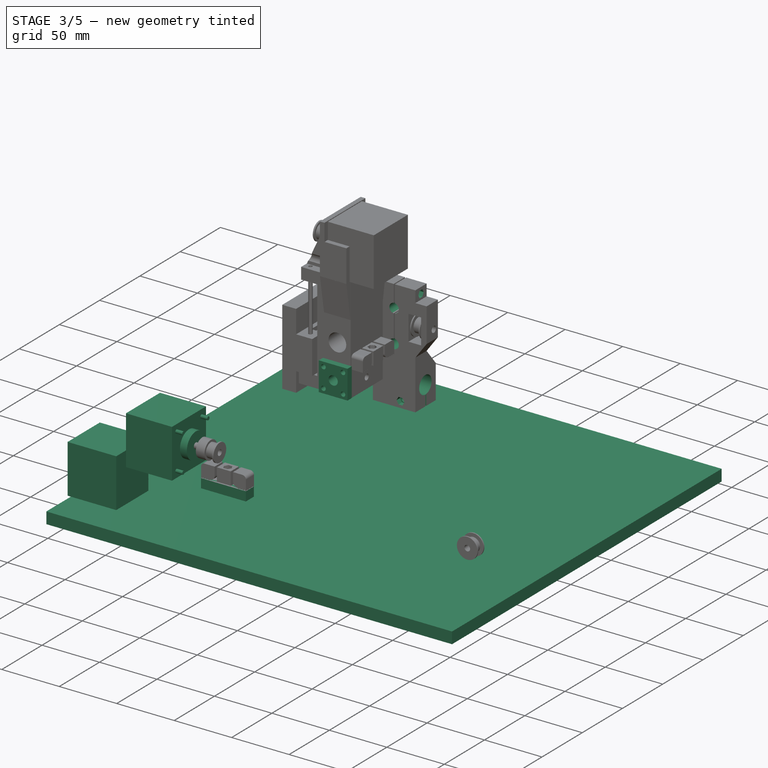
[diagram: stage 3 of 5 — iso view after this stage's code; geometry added in this stage tinted green]
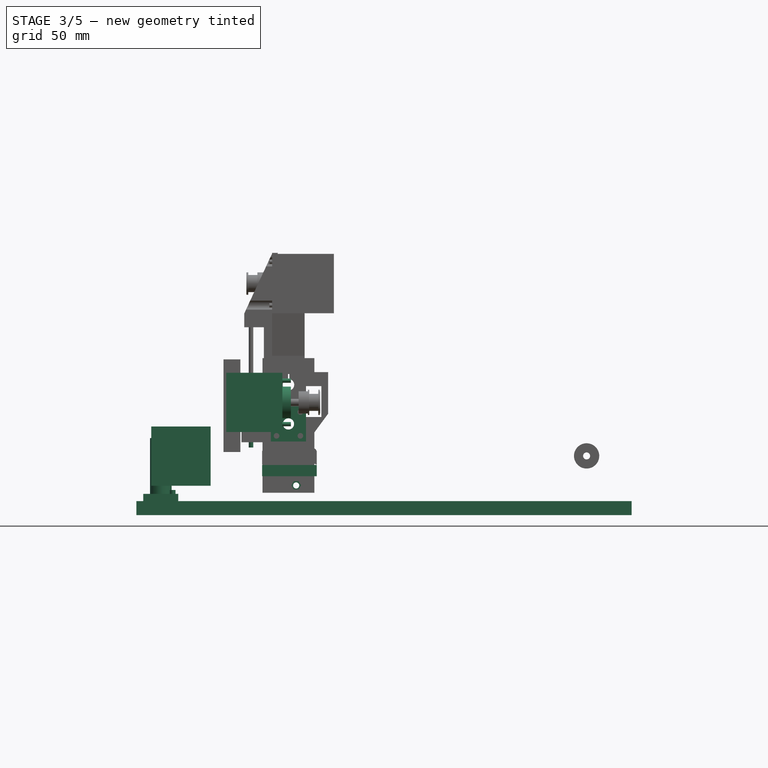
[diagram: stage 3 of 5 — front view after this stage's code; geometry added in this stage tinted green]
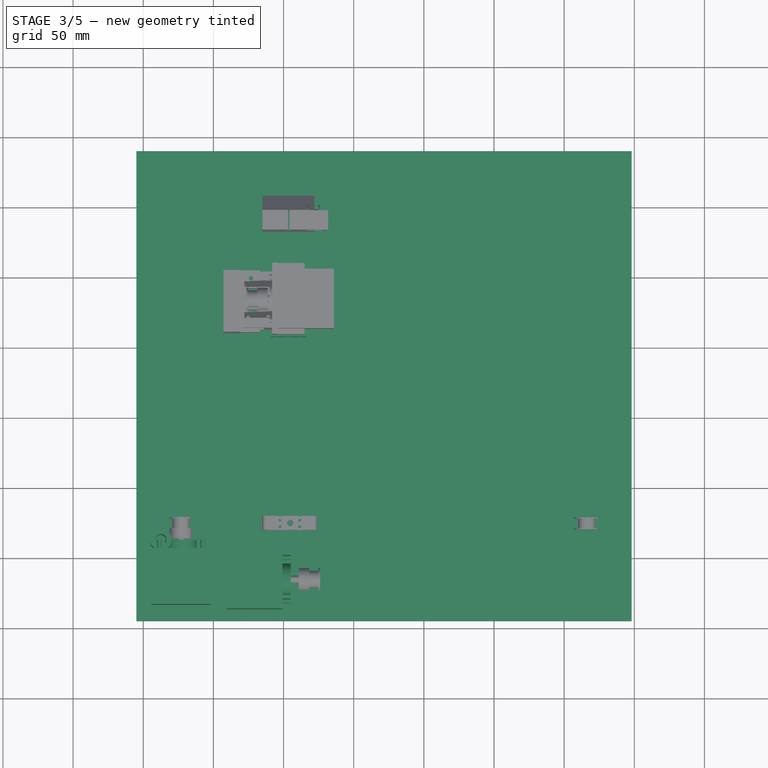
[diagram: stage 3 of 5 — top view after this stage's code; geometry added in this stage tinted green]
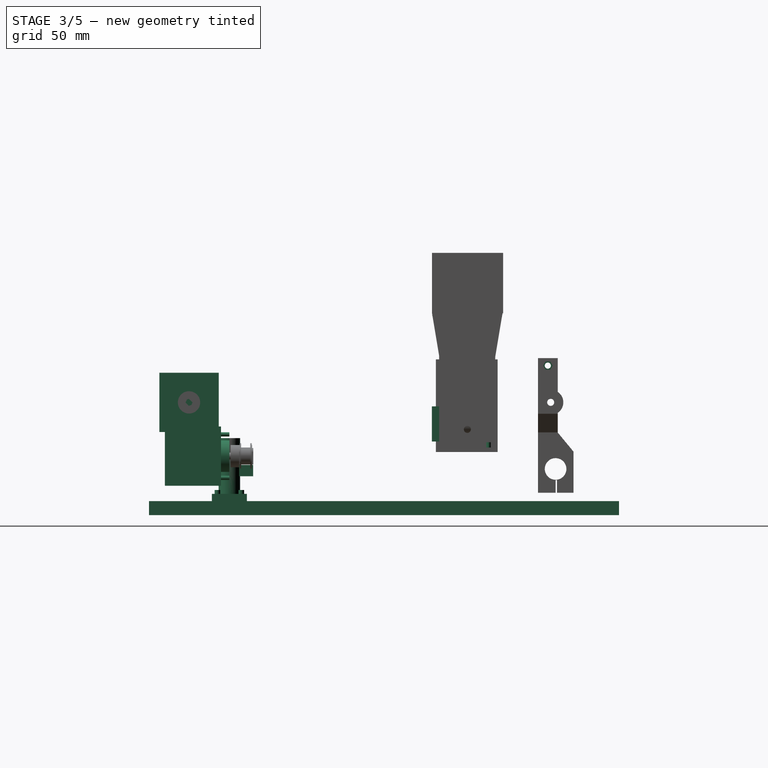
[diagram: stage 3 of 5 — right view after this stage's code; geometry added in this stage tinted green]
FEATURE [Part::Cylinder] Cylinder132  label="Цилиндр118"
  Angle = 360
  AttacherType = Attacher::AttachEngine3D
  Height = 40
  Placement = pos=(12.5,12.5,5) rot=(0,0,1;0rad)
  Radius = 7.7
FEATURE [Part::Cylinder] Cylinder133  label="Цилиндр119"
  Angle = 360
  AttacherType = Attacher::AttachEngine3D
  Height = 10
  Placement = pos=(4,4,-2) rot=(0,0,1;0rad)
  Radius = 2
FEATURE [Part::Cylinder] Cylinder134  label="Цилиндр120"
  Angle = 360
  AttacherType = Attacher::AttachEngine3D
  Height = 10
  Placement = pos=(21,21,-2) rot=(0,0,1;0rad)
  Radius = 2
FEATURE [Part::Cylinder] Cylinder135  label="Цилиндр121"
  Angle = 360
  AttacherType = Attacher::AttachEngine3D
  Height = 60
  Placement = pos=(12.5,12.5,-7) rot=(0,0,1;0rad)
  Radius = 4
FEATURE [Part::Cylinder] Cylinder136  label="Цилиндр122"
  Angle = 360
  AttacherType = Attacher::AttachEngine3D
  Height = 10
  Placement = pos=(4,21,-2) rot=(0,0,1;0rad)
  Radius = 2
FEATURE [Part::Cylinder] Cylinder137  label="Цилиндр123"
  Angle = 360
  AttacherType = Attacher::AttachEngine3D
  Height = 10
  Placement = pos=(21,4,-2) rot=(0,0,1;0rad)
  Radius = 2
FEATURE [Part::Box] Box049  label="Куб049"
  AttacherType = Attacher::AttachEngine3D
  Height = 5.2
  Length = 25
  Width = 25
FEATURE [Part::MultiFuse] Fusion062
  Shapes = -> [Box049,Cylinder132]
FEATURE [Part::Cut] Cut112
  Base = -> Fusion062
  Tool = -> Cylinder135
FEATURE [Part::Cut] Cut113
  Base = -> Cut112
  Tool = -> Cylinder133
FEATURE [Part::Cut] Cut116
  Base = -> Cut113
  Tool = -> Cylinder136
FEATURE [Part::Cut] Cut114
  Base = -> Cut116
  Tool = -> Cylinder137
FEATURE [Part::Cut] Cut115  label="Линейный подшипник001"
  Base = -> Cut114
  Placement = pos=(79.5,257.5,35.5) rot=(0.57735,-0.57735,0.57735;4.18879rad)
  Tool = -> Cylinder134
FEATURE [Part::Cylinder] Cylinder139  label="Направляющая013"
  Angle = 360
  AttacherType = Attacher::AttachEngine3D
  Height = 240
  Placement = pos=(103.5,247.3,83) rot=(0,0.707107,-0.707107;3.14159rad)
  Radius = 4.1
FEATURE [Part::Cylinder] Cylinder140  label="Направляющая014"
  Angle = 360
  AttacherType = Attacher::AttachEngine3D
  Height = 240
  Placement = pos=(103.5,247.4,55) rot=(0,0.707107,-0.707107;3.14159rad)
  Radius = 4.1
FEATURE [Part::Cut] Cut125
  Base = -> Cut124
  Tool = -> Cylinder139
FEATURE [Part::Cut] Cut126
  Base = -> Cut125
  Tool = -> Cylinder140
FEATURE [Part::Cut] Cut127
  Base = -> Cut126
  Tool = -> Box052
FEATURE [Part::Cylinder] Cylinder144  label="Цилиндр126"
  Angle = 360
  AttacherType = Attacher::AttachEngine3D
  Height = 50
  Placement = pos=(-24,26,-8) rot=(0,1,0;1.5708rad)
  Radius = 2.2
FEATURE [Part::Cone] Cone015  label="Конус015"
  Angle = 360
  AttacherType = Attacher::AttachEngine3D
  Height = 5
  Placement = pos=(-24,26,-8) rot=(0,-1,0;1.5708rad)
  Radius1 = 2.2
  Radius2 = 4
FEATURE [Part::MultiFuse] Fusion064  label="Винт М4х50 пот004"
  Placement = pos=(113.7,213.45,104.65) rot=(0,0,1;0rad)
  Shapes = -> [Cone015,Cylinder144]
FEATURE [Part::RegularPolygon] RegularPolygon011  label="Правильный многоугольник011"
  AttacherType = Attacher::AttachEngine3D
  Circumradius = 3.4
  Polygon = 6
FEATURE [Part::Extrusion] Extrude045
  Base = -> RegularPolygon011
  Dir = (0,0,1)
  DirMode = 0
  FaceMakerClass = Part::FaceMakerBullseye
  LengthFwd = 15
  LengthRev = 0
  Placement = pos=(112.45,239.5,96.65) rot=(0.57735,-0.57735,0.57735;4.18879rad)
  Solid = true
  Symmetric = false
FEATURE [Part::Cylinder] Cylinder145  label="Цилиндр127"
  Angle = 360
  AttacherType = Attacher::AttachEngine3D
  Height = 41
  Placement = pos=(125,245,23) rot=(0,-1,0;1.5708rad)
  Radius = 7.7
FEATURE [Part::Box] Box053  label="Куб053"
  AttacherType = Attacher::AttachEngine3D
  Height = 10
  Length = 45
  Placement = pos=(80,245,5) rot=(0,0,1;0rad)
  Width = 1
FEATURE [Part::RegularPolygon] RegularPolygon012  label="Правильный многоугольник012"
  AttacherType = Attacher::AttachEngine3D
  Circumradius = 3.4
  Polygon = 6
FEATURE [Part::Extrusion] Extrude046
  Base = -> RegularPolygon012
  Dir = (0,0,1)
  DirMode = 0
  FaceMakerClass = Part::FaceMakerBullseye
  LengthFwd = 15
  LengthRev = 0
  Placement = pos=(109.05,236.8,11.35) rot=(0,0.707107,-0.707107;3.14159rad)
  Solid = true
  Symmetric = false
FEATURE [Part::Cylinder] Cylinder146  label="Цилиндр128"
  Angle = 360
  AttacherType = Attacher::AttachEngine3D
  Height = 50
  Placement = pos=(-24,26,-8) rot=(0,1,0;1.5708rad)
  Radius = 2.2
FEATURE [Part::Cone] Cone016  label="Конус016"
  Angle = 360
  AttacherType = Attacher::AttachEngine3D
  Height = 5
  Placement = pos=(-24,26,-8) rot=(0,-1,0;1.5708rad)
  Radius1 = 2.2
  Radius2 = 4
FEATURE [Part::MultiFuse] Fusion065  label="Винт М4х50 пот005"
  Placement = pos=(83,229.15,19.25) rot=(0,0,-1;1.5708rad)
  Shapes = -> [Cone016,Cylinder146]
FEATURE [Part::Cylinder] Cylinder157  label="Цилиндр139"
  Angle = 360
  AttacherType = Attacher::AttachEngine3D
  Height = 40
  Placement = pos=(12.5,12.5,5) rot=(0,0,1;0rad)
  Radius = 7.7
FEATURE [Part::Cylinder] Cylinder158  label="Цилиндр140"
  Angle = 360
  AttacherType = Attacher::AttachEngine3D
  Height = 10
  Placement = pos=(4,4,-2) rot=(0,0,1;0rad)
  Radius = 2
FEATURE [Part::Cylinder] Cylinder159  label="Цилиндр141"
  Angle = 360
  AttacherType = Attacher::AttachEngine3D
  Height = 10
  Placement = pos=(21,21,-2) rot=(0,0,1;0rad)
  Radius = 2
FEATURE [Part::Cylinder] Cylinder160  label="Цилиндр142"
  Angle = 360
  AttacherType = Attacher::AttachEngine3D
  Height = 60
  Placement = pos=(12.5,12.5,-7) rot=(0,0,1;0rad)
  Radius = 4
FEATURE [Part::Cylinder] Cylinder161  label="Цилиндр143"
  Angle = 360
  AttacherType = Attacher::AttachEngine3D
  Height = 10
  Placement = pos=(21,4,-2) rot=(0,0,1;0rad)
  Radius = 2
FEATURE [Part::Cylinder] Cylinder162  label="Цилиндр144"
  Angle = 360
  AttacherType = Attacher::AttachEngine3D
  Height = 10
  Placement = pos=(4,21,-2) rot=(0,0,1;0rad)
  Radius = 2
FEATURE [Part::Box] Box069  label="Куб069"
  AttacherType = Attacher::AttachEngine3D
  Height = 5.2
  Length = 25
  Width = 25
FEATURE [Part::MultiFuse] Fusion082
  Shapes = -> [Box069,Cylinder157]
FEATURE [Part::Cut] Cut148
  Base = -> Fusion082
  Tool = -> Cylinder160
FEATURE [Part::Cut] Cut145
  Base = -> Cut148
  Tool = -> Cylinder158
FEATURE [Part::Cut] Cut149
  Base = -> Cut145
  Tool = -> Cylinder162
FEATURE [Part::Cylinder] Cylinder163  label="Цилиндр145"
  Angle = 360
  AttacherType = Attacher::AttachEngine3D
  Height = 10
  Placement = pos=(4,21,-2) rot=(0,0,1;0rad)
  Radius = 2
FEATURE [Part::Box] Box070  label="Куб070"
  AttacherType = Attacher::AttachEngine3D
  Height = 5.2
  Length = 25
  Width = 25
FEATURE [Part::Cylinder] Cylinder164  label="Цилиндр146"
  Angle = 360
  AttacherType = Attacher::AttachEngine3D
  Height = 10
  Placement = pos=(4,4,-2) rot=(0,0,1;0rad)
  Radius = 2
FEATURE [Part::Cylinder] Cylinder165  label="Цилиндр147"
  Angle = 360
  AttacherType = Attacher::AttachEngine3D
  Height = 40
  Placement = pos=(12.5,12.5,5) rot=(0,0,1;0rad)
  Radius = 7.7
FEATURE [Part::Cylinder] Cylinder166  label="Цилиндр148"
  Angle = 360
  AttacherType = Attacher::AttachEngine3D
  Height = 10
  Placement = pos=(21,21,-2) rot=(0,0,1;0rad)
  Radius = 2
FEATURE [Part::Cylinder] Cylinder167  label="Цилиндр149"
  Angle = 360
  AttacherType = Attacher::AttachEngine3D
  Height = 60
  Placement = pos=(12.5,12.5,-7) rot=(0,0,1;0rad)
  Radius = 4
FEATURE [Part::Cylinder] Cylinder168  label="Цилиндр150"
  Angle = 360
  AttacherType = Attacher::AttachEngine3D
  Height = 10
  Placement = pos=(21,4,-2) rot=(0,0,1;0rad)
  Radius = 2
FEATURE [Part::MultiFuse] Fusion083
  Shapes = -> [Box070,Cylinder165]
FEATURE [Part::Cut] Cut152
  Base = -> Fusion083
  Tool = -> Cylinder167
FEATURE [Part::Cut] Cut154
  Base = -> Cut152
  Tool = -> Cylinder164
FEATURE [Part::Cut] Cut151
  Base = -> Cut154
  Tool = -> Cylinder163
FEATURE [Part::Cut] Cut150
  Base = -> Cut151
  Tool = -> Cylinder168
FEATURE [Part::Cut] Cut153  label="Линейный подшипник003"
  Base = -> Cut150
  Placement = pos=(91,156.8,67.6) rot=(-1,0,0;1.5708rad)
  Tool = -> Cylinder166
FEATURE [Part::Cylinder] Cylinder217  label="Направляющая_3мм_008"
  Angle = 360
  AttacherType = Attacher::AttachEngine3D
  Height = 98
  Placement = pos=(76.8,197.2,38.3) rot=(0,0,1;0rad)
  Radius = 1.6
FEATURE [Part::Box] Box073  label="Куб073"
  AttacherType = Attacher::AttachEngine3D
  Height = 10
  Length = 353
  Placement = pos=(-4.9,-44.8,-9.9) rot=(0,0,1;0rad)
  Width = 335
FEATURE [Part::Cone] Cone020  label="Конус020"
  Angle = 360
  AttacherType = Attacher::AttachEngine3D
  Height = 5
  Placement = pos=(-24,26,-8) rot=(0,-1,0;1.5708rad)
  Radius1 = 2.2
  Radius2 = 4
FEATURE [Part::Box] Box085  label="Куб085"
  AttacherType = Attacher::AttachEngine3D
  Height = 8
  Length = 39
  Placement = pos=(84.8,19.5,38.7) rot=(0,0,1;0rad)
  Width = 10
FEATURE [Part::Cylinder] Cylinder219  label="Цилиндр158"
  Angle = 360
  AttacherType = Attacher::AttachEngine3D
  Height = 50
  Placement = pos=(-24,26,-8) rot=(0,1,0;1.5708rad)
  Radius = 2.2
FEATURE [Part::MultiFuse] Fusion092  label="Винт М4х50 пот009"
  Placement = pos=(111.8,-1.7,18.4) rot=(0,1,0;1.5708rad)
  Shapes = -> [Cone020,Cylinder219]
FEATURE [Part::Cut] Cut159
  Base = -> Box085
  Placement = pos=(208.5,-0.1,64.5) rot=(0,1,0;3.14159rad)
  Tool = -> Fusion092
FEATURE [Part::Cylinder] Cylinder220  label="Цилиндр159"
  Angle = 360
  AttacherType = Attacher::AttachEngine3D
  Height = 10
  Placement = pos=(0,0,-1.9) rot=(0,0,1;0rad)
  Radius = 1.5
FEATURE [Part::Cylinder] Cylinder093  label="Цилиндр160"
  Angle = 360
  AttacherType = Attacher::AttachEngine3D
  Height = 6.6
  Radius = 4.1
FEATURE [Part::Cut] Cut006  label="Подшипник"
  Base = -> Cylinder093
  Placement = pos=(76.8,197.2,52.1) rot=(0,0,1;0rad)
  Tool = -> Cylinder220
FEATURE [Part::Cylinder] Cylinder221  label="Цилиндр161"
  Angle = 360
  AttacherType = Attacher::AttachEngine3D
  Height = 10
  Placement = pos=(0,0,-1.9) rot=(0,0,1;0rad)
  Radius = 1.5
FEATURE [Part::Cylinder] Cylinder222  label="Цилиндр162"
  Angle = 360
  AttacherType = Attacher::AttachEngine3D
  Height = 6.6
  Radius = 4.1
FEATURE [Part::Cut] Cut160  label="Подшипник001"
  Base = -> Cylinder222
  Placement = pos=(76.8,166.7,52.1) rot=(0,0,1;0rad)
  Tool = -> Cylinder221
FEATURE [Part::Cylinder] Cylinder223  label="Цилиндр163"
  Angle = 360
  AttacherType = Attacher::AttachEngine3D
  Height = 10
  Placement = pos=(0,0,-1.9) rot=(0,0,1;0rad)
  Radius = 1.5
FEATURE [Part::Cylinder] Cylinder224  label="Цилиндр164"
  Angle = 360
  AttacherType = Attacher::AttachEngine3D
  Height = 6.6
  Radius = 4.1
FEATURE [Part::Cut] Cut161  label="Подшипник002"
  Base = -> Cylinder224
  Placement = pos=(76.8,197.2,74.5) rot=(0,0,1;0rad)
  Tool = -> Cylinder223
FEATURE [Part::Cylinder] Cylinder225  label="Цилиндр165"
  Angle = 360
  AttacherType = Attacher::AttachEngine3D
  Height = 10
  Placement = pos=(0,0,-1.9) rot=(0,0,1;0rad)
  Radius = 1.5
FEATURE [Part::Cylinder] Cylinder226  label="Цилиндр166"
  Angle = 360
  AttacherType = Attacher::AttachEngine3D
  Height = 6.6
  Radius = 4.1
FEATURE [Part::Cut] Cut162  label="Подшипник003"
  Base = -> Cylinder226
  Placement = pos=(76.8,166.7,74.5) rot=(0,0,1;0rad)
  Tool = -> Cylinder225
FEATURE [Part::Cut] Cut163
  Base = -> Cut127
  Tool = -> Cylinder143
FEATURE [Part::Cut] Cut164
  Base = -> Cut163
  Tool = -> Extrude045
FEATURE [Part::Cut] Cut165
  Base = -> Cut164
  Tool = -> Fusion064
FEATURE [Part::Cut] Cut166
  Base = -> Cut165
  Tool = -> Cut115
FEATURE [Part::Cut] Cut167
  Base = -> Cut166
  Tool = -> Box053
FEATURE [Part::Cut] Cut168
  Base = -> Cut167
  Tool = -> Fusion065
FEATURE [Part::Cut] Cut169
  Base = -> Cut168
  Tool = -> Extrude046
FEATURE [Part::Box] Box  label="Куб"
  AttacherType = Attacher::AttachEngine3D
  Height = 42.3
  Length = 40
  Width = 42.3
FEATURE [Part::Cylinder] Cylinder  label="Цилиндр"
  Angle = 360
  AttacherType = Attacher::AttachEngine3D
  Height = 21
  Placement = pos=(40,21.15,21.15) rot=(0,1,0;1.5708rad)
  Radius = 2.5
FEATURE [Part::Cylinder] Cylinder227  label="Цилиндр167"
  Angle = 360
  AttacherType = Attacher::AttachEngine3D
  Height = 6
  Placement = pos=(40,21.15,21.15) rot=(0,1,0;1.5708rad)
  Radius = 11.2
FEATURE [Part::Cylinder] Cylinder228  label="Цилиндр168"
  Angle = 360
  AttacherType = Attacher::AttachEngine3D
  Height = 6
  Placement = pos=(40,36.65,5.65) rot=(0,1,0;1.5708rad)
  Radius = 1.5
FEATURE [Part::Cylinder] Cylinder229  label="Цилиндр169"
  Angle = 360
  AttacherType = Attacher::AttachEngine3D
  Height = 6
  Placement = pos=(40,36.65,36.65) rot=(0,1,0;1.5708rad)
  Radius = 1.5
FEATURE [Part::Cylinder] Cylinder230  label="Цилиндр170"
  Angle = 360
  AttacherType = Attacher::AttachEngine3D
  Height = 6
  Placement = pos=(40,5.65,5.65) rot=(0,1,0;1.5708rad)
  Radius = 1.5
FEATURE [Part::Cylinder] Cylinder231  label="Цилиндр171"
  Angle = 360
  AttacherType = Attacher::AttachEngine3D
  Height = 6
  Placement = pos=(40,5.65,36.665) rot=(0,1,0;1.5708rad)
  Radius = 1.5
FEATURE [Part::MultiFuse] Fusion  label="NEMA 17"
  Placement = pos=(59.2,-37.4,49.3) rot=(0,0,1;0rad)
  Shapes = -> [Box,Cylinder231,Cylinder229,Cylinder227,Cylinder,Cylinder230,Cylinder228]
FEATURE [Part::Cylinder] Cylinder232  label="Цилиндр172"
  Angle = 360
  AttacherType = Attacher::AttachEngine3D
  Height = 6
  Placement = pos=(40,21.15,21.15) rot=(0,1,0;1.5708rad)
  Radius = 11.2
FEATURE [Part::Cylinder] Cylinder233  label="Цилиндр173"
  Angle = 360
  AttacherType = Attacher::AttachEngine3D
  Height = 6
  Placement = pos=(40,36.65,5.65) rot=(0,1,0;1.5708rad)
  Radius = 1.5
FEATURE [Part::Cylinder] Cylinder234  label="Цилиндр174"
  Angle = 360
  AttacherType = Attacher::AttachEngine3D
  Height = 6
  Placement = pos=(40,36.65,36.65) rot=(0,1,0;1.5708rad)
  Radius = 1.5
FEATURE [Part::Box] Box091  label="Куб091"
  AttacherType = Attacher::AttachEngine3D
  Height = 42.3
  Length = 40
  Width = 42.3
FEATURE [Part::Cylinder] Cylinder235  label="Цилиндр175"
  Angle = 360
  AttacherType = Attacher::AttachEngine3D
  Height = 6
  Placement = pos=(40,5.65,5.65) rot=(0,1,0;1.5708rad)
  Radius = 1.5
FEATURE [Part::Cylinder] Cylinder236  label="Цилиндр176"
  Angle = 360
  AttacherType = Attacher::AttachEngine3D
  Height = 6
  Placement = pos=(40,5.65,36.665) rot=(0,1,0;1.5708rad)
  Radius = 1.5
FEATURE [Part::Cylinder] Cylinder237  label="Цилиндр177"
  Angle = 360
  AttacherType = Attacher::AttachEngine3D
  Height = 21
  Placement = pos=(40,21.15,21.15) rot=(0,1,0;1.5708rad)
  Radius = 2.5
FEATURE [Part::MultiFuse] Fusion096  label="NEMA 17_1"
  Placement = pos=(48,-33.5,11) rot=(0,0,1;1.5708rad)
  Shapes = -> [Box091,Cylinder236,Cylinder234,Cylinder232,Cylinder237,Cylinder235,Cylinder233]
FEATURE [Part::Cut] Cut170
  Base = -> Cut169
  Tool = -> Cylinder145
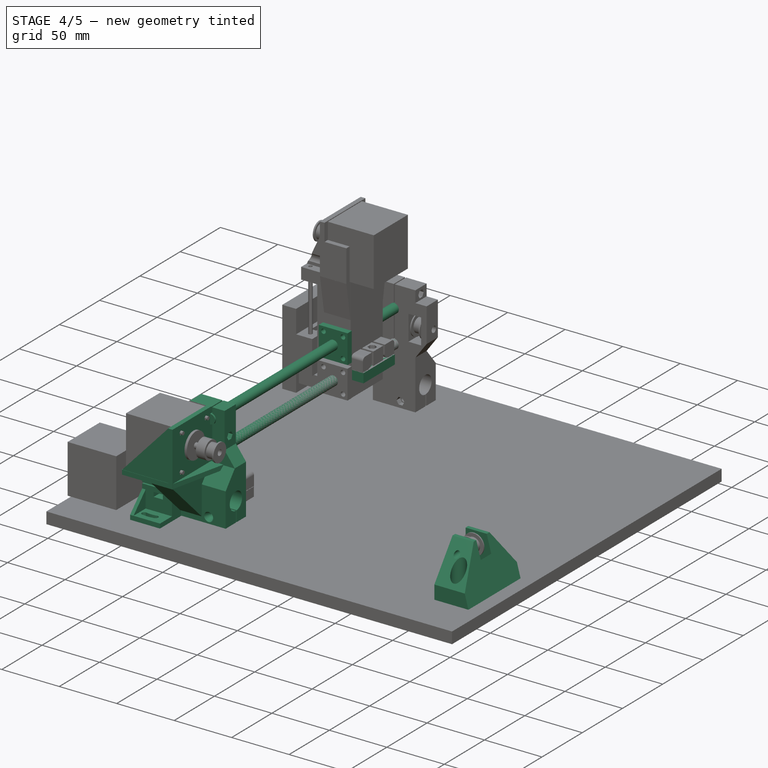
[diagram: stage 4 of 5 — iso view after this stage's code; geometry added in this stage tinted green]
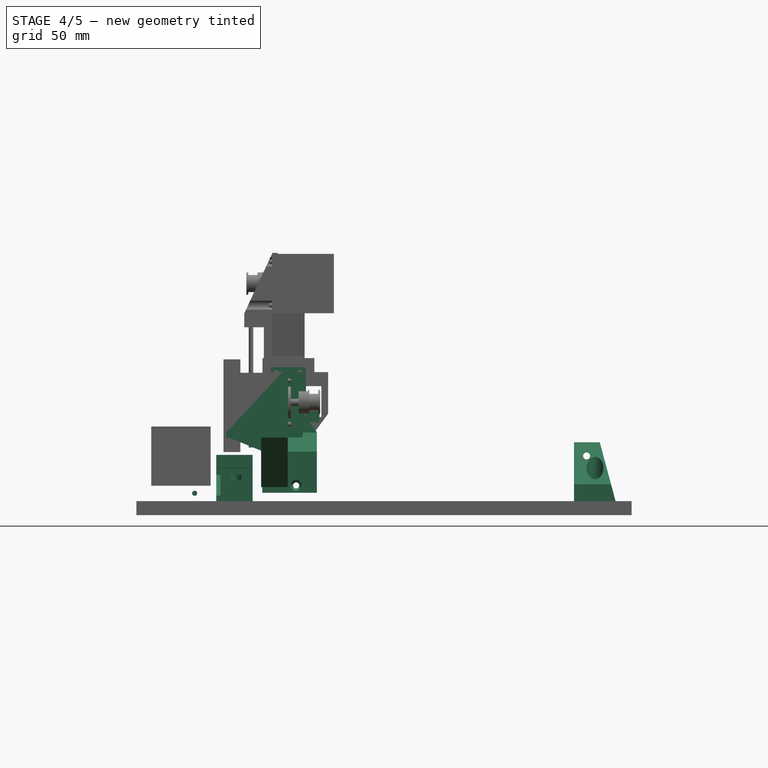
[diagram: stage 4 of 5 — front view after this stage's code; geometry added in this stage tinted green]
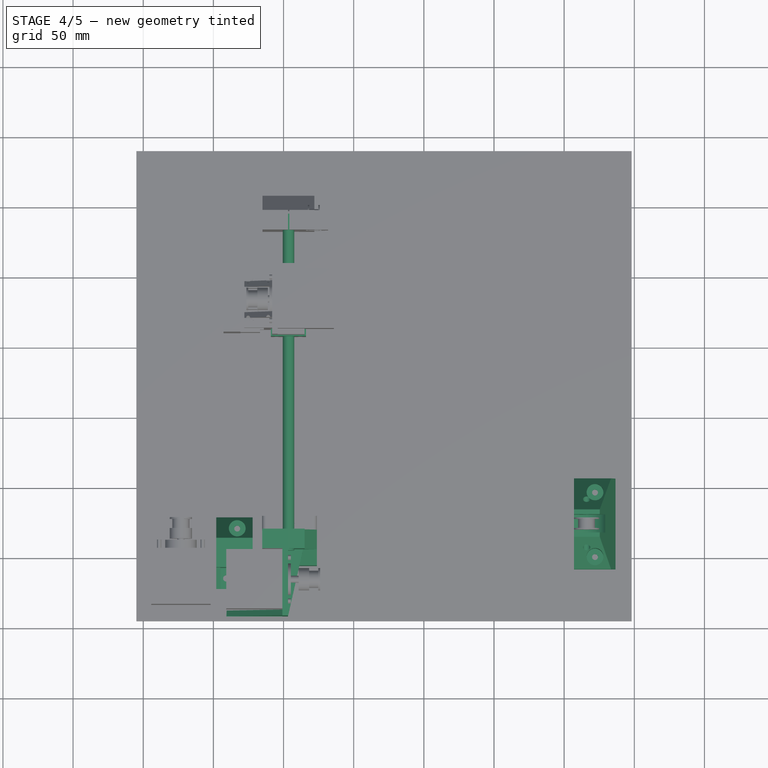
[diagram: stage 4 of 5 — top view after this stage's code; geometry added in this stage tinted green]
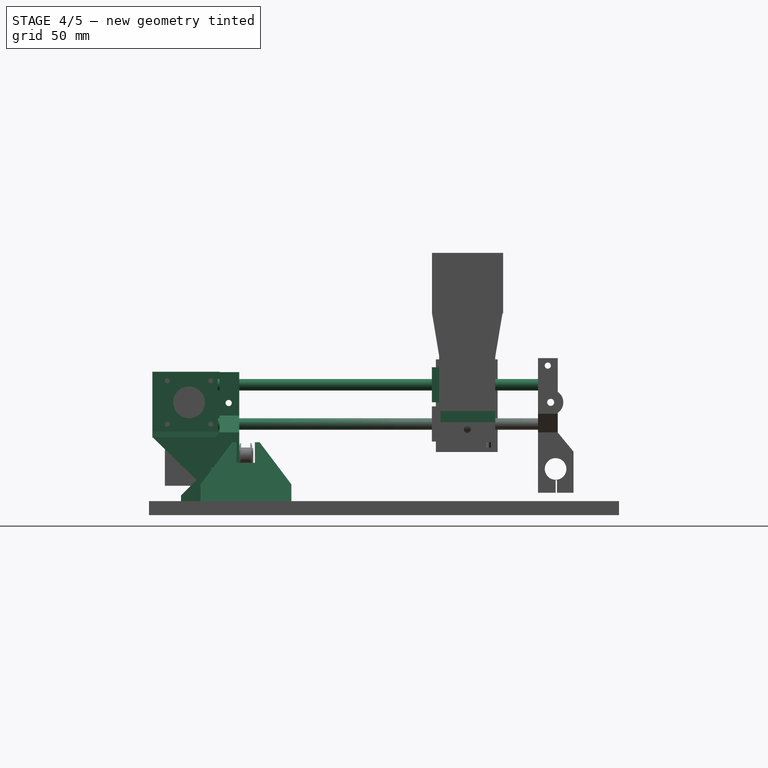
[diagram: stage 4 of 5 — right view after this stage's code; geometry added in this stage tinted green]
FEATURE [Part::Cylinder] Cylinder110  label="Цилиндр099"
  Angle = 360
  AttacherType = Attacher::AttachEngine3D
  Height = 10
  Placement = pos=(36.65,0,5.65) rot=(1,0,0;1.5708rad)
  Radius = 1.8
FEATURE [Part::Cylinder] Cylinder111  label="Цилиндр100"
  Angle = 360
  AttacherType = Attacher::AttachEngine3D
  Height = 10
  Placement = pos=(36.65,0,36.65) rot=(1,0,0;1.5708rad)
  Radius = 1.8
FEATURE [Sketcher::SketchObject] Sketch025
  sketch-geometry (4):
    g0: ArcOfCircle CenterX=9 CenterY=15 CenterZ=0 NormalX=0 NormalY=0 NormalZ=1 AngleXU=0 Radius=27.2 StartAngle=6.09831 EndAngle=6.46806
    g1: ArcOfCircle CenterX=9 CenterY=15 CenterZ=0 NormalX=0 NormalY=0 NormalZ=1 AngleXU=0 Radius=22.8 StartAngle=6.06209 EndAngle=6.50428
    g2: ArcOfCircle CenterX=33.4907 CenterY=10.1383 CenterZ=0 NormalX=0 NormalY=0 NormalZ=1 AngleXU=0 Radius=2.25 StartAngle=3.20309 EndAngle=6.22168
    g3: ArcOfCircle CenterX=33.4907 CenterY=19.8617 CenterZ=0 NormalX=0 NormalY=0 NormalZ=1 AngleXU=0 Radius=2.25 StartAngle=0.0615005 EndAngle=3.08009
  constraints (15):
    c: DistanceX(g0) = 9
    c: DistanceY(g0) = 15
    c: Coincident(g1,g0)
    c: Radius(g1) = 22.8
    c: Radius(g0) = 27.2
    c: DistanceY(g-1,g1) = 10
    c: DistanceY(g-1,g0) = 10
    c: DistanceY(g1,g1) = 10
    c: DistanceY(g0,g0) = 10
    c: Coincident(g2,g1)
    c: Coincident(g2,g0)
    c: Radius(g2) = 2.25
    c: Coincident(g3,g1)
    c: Coincident(g0,g3)
    c: Radius(g3) = 2.25
FEATURE [Sketcher::SketchObject] Sketch026
  Placement = pos=(0,0,0) rot=(1,0,0;1.5708rad)
  sketch-geometry (3):
    g0: LineSegment StartX=-22 StartY=-19 StartZ=0 EndX=-7 EndY=-19 EndZ=0
    g1: LineSegment StartX=-7 StartY=-19 StartZ=0 EndX=-7 EndY=-4 EndZ=0
    g2: LineSegment StartX=-7 StartY=-4 StartZ=0 EndX=-22 EndY=-19 EndZ=0
  constraints (9):
    c: Horizontal(g0)
    c: Vertical(g1)
    c: DistanceX(g0) = -7
    c: DistanceY(g0) = -19
    c: Coincident(g0,g1)
    c: Coincident(g2,g0)
    c: DistanceY(g1,g1) = 15
    c: Coincident(g2,g1)
    c: DistanceX(g0,g0) = 15
FEATURE [Sketcher::SketchObject] Sketch027
  Placement = pos=(0,0,0) rot=(1,0,0;1.5708rad)
  sketch-geometry (3):
    g0: LineSegment StartX=-22 StartY=-19 StartZ=0 EndX=-7 EndY=-19 EndZ=0
    g1: LineSegment StartX=-7 StartY=-19 StartZ=0 EndX=-7 EndY=10 EndZ=0
    g2: LineSegment StartX=-7 StartY=10 StartZ=0 EndX=-22 EndY=-19 EndZ=0
  constraints (9):
    c: Horizontal(g0)
    c: Vertical(g1)
    c: DistanceX(g0) = -7
    c: DistanceY(g0) = -19
    c: Coincident(g0,g1)
    c: Coincident(g2,g0)
    c: DistanceY(g1,g1) = 29
    c: Coincident(g2,g1)
    c: DistanceX(g0,g0) = 15
FEATURE [Part::Cone] Cone013  label="Конус013"
  Angle = 360
  AttacherType = Attacher::AttachEngine3D
  Height = 2.5
  Placement = pos=(0,0,15) rot=(0,0,1;0rad)
  Radius1 = 1.6
  Radius2 = 2.5
FEATURE [Part::Cylinder] Cylinder112  label="Цилиндр101"
  Angle = 360
  AttacherType = Attacher::AttachEngine3D
  Height = 30
  Placement = pos=(0,0,10) rot=(0,0,1;0rad)
  Radius = 6
FEATURE [Part::Box] Box039  label="Куб039"
  AttacherType = Attacher::AttachEngine3D
  Height = 4
  Length = 51
  Placement = pos=(-22,0,-23) rot=(0,0,1;0rad)
  Width = 26
FEATURE [Part::Cylinder] Cylinder113  label="Цилиндр102"
  Angle = 360
  AttacherType = Attacher::AttachEngine3D
  Height = 15
  Radius = 1.6
FEATURE [Part::Box] Box040  label="Куб040"
  AttacherType = Attacher::AttachEngine3D
  Height = 1
  Length = 12
  Placement = pos=(3,-6,0) rot=(0,0,1;0rad)
  Width = 35
FEATURE [Part::Box] Box041  label="Куб041"
  AttacherType = Attacher::AttachEngine3D
  Height = 4
  Length = 13
  Placement = pos=(9,7,-8) rot=(0,0,1;0rad)
  Width = 8
FEATURE [Part::Extrusion] Extrude032
  Base = -> Sketch027
  Dir = (0,1,0)
  DirMode = 0
  FaceMakerClass = Part::FaceMakerBullseye
  LengthFwd = 26
  LengthRev = 0
  Placement = pos=(0,-3,0) rot=(0,0,1;0rad)
  Solid = true
  Symmetric = false
FEATURE [Part::Cylinder] Cylinder114  label="Цилиндр103"
  Angle = 360
  AttacherType = Attacher::AttachEngine3D
  Height = 10
  Radius = 2.1
FEATURE [Part::Extrusion] Extrude033
  Base = -> Sketch025
  Dir = (0,0,-1)
  DirMode = 0
  FaceMakerClass = Part::FaceMakerBullseye
  LengthFwd = 10
  LengthRev = 0
  Placement = pos=(-12,-3,-17) rot=(0,0,1;0rad)
  Solid = true
  Symmetric = false
FEATURE [Part::Cut] Cut099
  Base = -> Box039
  Placement = pos=(0,-3,0) rot=(0,0,1;0rad)
  Tool = -> Extrude033
FEATURE [Part::Extrusion] Extrude034
  Base = -> Sketch026
  Dir = (0,1,0)
  DirMode = 0
  FaceMakerClass = Part::FaceMakerBullseye
  LengthFwd = 3
  LengthRev = 0
  Placement = pos=(7,4e-15,0) rot=(0,0,1;3.14159rad)
  Solid = true
  Symmetric = false
FEATURE [Part::Box] Box042  label="Куб042"
  AttacherType = Attacher::AttachEngine3D
  Height = 33
  Length = 21
  Placement = pos=(-7,-3,-23) rot=(0,0,1;0rad)
  Width = 26
FEATURE [Part::Cut] Cut100
  Base = -> Box042
  Tool = -> Box040
FEATURE [Part::Cylinder] Cylinder115  label="Направляющая011"
  Angle = 360
  AttacherType = Attacher::AttachEngine3D
  Height = 240
  Placement = pos=(0,-7,-2e-15) rot=(-1,0,0;1.5708rad)
  Radius = 4.1
FEATURE [Part::Cut] Cut102
  Base = -> Cut100
  Tool = -> Cylinder115
FEATURE [Part::Cylinder] Cylinder116  label="Цилиндр104"
  Angle = 360
  AttacherType = Attacher::AttachEngine3D
  Height = 4
  Placement = pos=(9,11,-8) rot=(0,0,1;0rad)
  Radius = 4
FEATURE [Part::MultiFuse] Fusion051  label="Саморез006"
  Placement = pos=(-14,12,-29) rot=(0,0,1;0rad)
  Shapes = -> [Cylinder114,Cylinder112]
FEATURE [Part::MultiFuse] Fusion052
  Shapes = -> [Cut102,Cut099,Extrude032]
FEATURE [Part::MultiFuse] Fusion053  label="Винт М3 потай010"
  Placement = pos=(9,11,-7) rot=(0,0,1;0rad)
  Shapes = -> [Cone013,Cylinder113]
FEATURE [Part::MultiFuse] Fusion054
  Shapes = -> [Fusion052,Extrude034]
FEATURE [Part::MultiFuse] Fusion055
  Shapes = -> [Box041,Cylinder116]
FEATURE [Part::Cut] Cut098
  Base = -> Fusion054
  Tool = -> Fusion055
FEATURE [Part::Cut] Cut103
  Base = -> Cut098
  Tool = -> Fusion053
FEATURE [Part::Cut] Cut101  label="Стойка направляющей002"
  Base = -> Cut103
  Placement = pos=(55,7,23) rot=(0,0,-1;1.5708rad)
  Tool = -> Fusion051
FEATURE [Sketcher::SketchObject] Sketch028
  Placement = pos=(0,0,0) rot=(0.57735,0.57735,0.57735;2.0944rad)
  sketch-geometry (6):
    g0: LineSegment StartX=15 StartY=0 StartZ=0 EndX=-49.79 EndY=0 EndZ=0
    g1: LineSegment StartX=15 StartY=0 StartZ=0 EndX=15 EndY=12 EndZ=0
    g2: LineSegment StartX=15 StartY=12 StartZ=0 EndX=-7.60662 EndY=42 EndZ=0
    g3: LineSegment StartX=-49.79 StartY=0 StartZ=0 EndX=-49.79 EndY=12 EndZ=0
    g4: LineSegment StartX=-49.79 StartY=12 StartZ=0 EndX=-27.1834 EndY=42 EndZ=0
    g5: LineSegment StartX=-27.1834 StartY=42 StartZ=0 EndX=-7.60662 EndY=42 EndZ=0
  constraints (18):
    c: Horizontal(g0)
    c: DistanceY(g-1,g0) = 0
    c: Vertical(g1)
    c: Coincident(g1,g0)
    c: DistanceY(g1,g1) = 12
    c: DistanceX(g-1,g0) = 15
    c: Coincident(g2,g1)
    c: Angle(g2,g1) = 2.49582
    c: Coincident(g3,g0)
    c: Vertical(g3)
    c: Equal(g3,g1)
    c: Coincident(g4,g3)
    c: Angle(g3,g4) = 2.49582
    c: DistanceY(g-1,g2) = 42
    c: DistanceY(g0,g4) = 42
    c: DistanceX(g0,g0) = 64.79
    c: Coincident(g4,g5)
    c: Coincident(g2,g5)
FEATURE [Part::Extrusion] Extrude035
  Base = -> Sketch028
  Dir = (-1,0,0)
  DirMode = 0
  FaceMakerClass = Part::FaceMakerBullseye
  LengthFwd = 30
  LengthRev = 0
  Placement = pos=(337,0,0) rot=(0,0,1;0rad)
  Solid = true
  Symmetric = false
FEATURE [Part::Cylinder] Cylinder117  label="Цилиндр105"
  Angle = 360
  AttacherType = Attacher::AttachEngine3D
  Height = 40
  Placement = pos=(0,0,10) rot=(0,0,1;0rad)
  Radius = 6
FEATURE [Part::Cylinder] Cylinder118  label="Цилиндр106"
  Angle = 360
  AttacherType = Attacher::AttachEngine3D
  Height = 10
  Radius = 2.1
FEATURE [Part::MultiFuse] Fusion056  label="Саморез007"
  Placement = pos=(322,5,-5) rot=(0,0,1;0rad)
  Shapes = -> [Cylinder118,Cylinder117]
FEATURE [Part::Cylinder] Cylinder119  label="Цилиндр107"
  Angle = 360
  AttacherType = Attacher::AttachEngine3D
  Height = 40
  Placement = pos=(0,0,10) rot=(0,0,1;0rad)
  Radius = 6
FEATURE [Part::Cylinder] Cylinder120  label="Цилиндр108"
  Angle = 360
  AttacherType = Attacher::AttachEngine3D
  Height = 10
  Radius = 2.1
FEATURE [Part::MultiFuse] Fusion057  label="Саморез008"
  Placement = pos=(322,-41,-5) rot=(0,0,1;0rad)
  Shapes = -> [Cylinder120,Cylinder119]
FEATURE [Part::Cylinder] Cylinder121  label="Цилиндр109"
  Angle = 360
  AttacherType = Attacher::AttachEngine3D
  Height = 13
  Placement = pos=(313,-11,35) rot=(1,0,0;1.5708rad)
  Radius = 18
FEATURE [Part::Cut] Cut104
  Base = -> Extrude035
  Tool = -> Cylinder121
FEATURE [Part::Cut] Cut105
  Base = -> Cut104
  Tool = -> Fusion057
FEATURE [Part::Cut] Cut106
  Base = -> Cut105
  Tool = -> Fusion056
FEATURE [Part::Cylinder] Cylinder122  label="Цилиндр110"
  Angle = 360
  AttacherType = Attacher::AttachEngine3D
  Height = 47
  Placement = pos=(316,5.5,32.2) rot=(1,0,0;1.5708rad)
  Radius = 2.6
FEATURE [Part::Cut] Cut107
  Base = -> Cut106
  Tool = -> Cylinder122
FEATURE [Part::Box] Box043  label="Куб043"
  AttacherType = Attacher::AttachEngine3D
  Height = 51
  Length = 14
  Placement = pos=(336.936,-53.3,-1.03528) rot=(0,-1,0;0.261799rad)
  Width = 73
FEATURE [Part::Cut] Cut108
  Base = -> Cut107
  Placement = pos=(0,41.7,0) rot=(0,0,1;0rad)
  Tool = -> Box043
FEATURE [Part::Cylinder] Cylinder123  label="Направляющая004"
  Angle = 360
  AttacherType = Attacher::AttachEngine3D
  Height = 240
  Placement = pos=(103.5,244,83) rot=(0,0.707107,-0.707107;3.14159rad)
  Radius = 4.1
FEATURE [Part::Cylinder] Cylinder124  label="Направляющая012"
  Angle = 360
  AttacherType = Attacher::AttachEngine3D
  Height = 240
  Placement = pos=(103.5,245,55) rot=(0,0.707107,-0.707107;3.14159rad)
  Radius = 4.1
FEATURE [Part::Cylinder] Cylinder125  label="Цилиндр111"
  Angle = 360
  AttacherType = Attacher::AttachEngine3D
  Height = 24
  Placement = pos=(21.15,-2,21.15) rot=(1,0,0;1.5708rad)
  Radius = 2.5
FEATURE [Part::Box] Box044  label="Куб044"
  AttacherType = Attacher::AttachEngine3D
  Height = 42.3
  Length = 42.3
  Width = 39.8
FEATURE [Part::Cylinder] Cylinder126  label="Цилиндр112"
  Angle = 360
  AttacherType = Attacher::AttachEngine3D
  Height = 6
  Placement = pos=(21.15,0,21.15) rot=(1,0,0;1.5708rad)
  Radius = 11.3
FEATURE [Part::MultiFuse] Fusion058
  Shapes = -> [Box044,Cylinder126]
FEATURE [Part::MultiFuse] Fusion059  label="Motor002"
  Shapes = -> [Fusion058,Cylinder125]
FEATURE [Part::Cylinder] Cylinder127  label="Цилиндр113"
  Angle = 360
  AttacherType = Attacher::AttachEngine3D
  Height = 10
  Placement = pos=(5.65,0,36.65) rot=(1,0,0;1.5708rad)
  Radius = 1.8
FEATURE [Part::Cylinder] Cylinder128  label="Цилиндр114"
  Angle = 360
  AttacherType = Attacher::AttachEngine3D
  Height = 10
  Placement = pos=(5.65,0,5.65) rot=(1,0,0;1.5708rad)
  Radius = 1.8
FEATURE [Part::Cylinder] Cylinder129  label="Цилиндр115"
  Angle = 360
  AttacherType = Attacher::AttachEngine3D
  Height = 10
  Placement = pos=(36.65,0,5.65) rot=(1,0,0;1.5708rad)
  Radius = 1.8
FEATURE [Part::Cylinder] Cylinder130  label="Цилиндр116"
  Angle = 360
  AttacherType = Attacher::AttachEngine3D
  Height = 10
  Placement = pos=(36.65,0,36.65) rot=(1,0,0;1.5708rad)
  Radius = 1.8
FEATURE [Part::MultiFuse] Fusion060  label="NEMA-019"
  Placement = pos=(99,-37.4,91.6) rot=(0.57735,-0.57735,-0.57735;4.18879rad)
  Shapes = -> [Fusion059,Cylinder127,Cylinder130,Cylinder128,Cylinder129]
FEATURE [Sketcher::SketchObject] Sketch030
  Placement = pos=(0,0,0) rot=(0.57735,0.57735,0.57735;2.0944rad)
  sketch-geometry (6):
    g0: LineSegment StartX=19.5 StartY=6 StartZ=0 EndX=19.5 EndY=92 EndZ=0
    g1: LineSegment StartX=19.5 StartY=92 StartZ=0 EndX=5.5 EndY=92 EndZ=0
    g2: LineSegment StartX=5.5 StartY=92 StartZ=0 EndX=5.5 EndY=49 EndZ=0
    g3: LineSegment StartX=5.5 StartY=49 StartZ=0 EndX=-5.77687 EndY=35.3444 EndZ=0
    g4: LineSegment StartX=-5.77687 StartY=35.3444 StartZ=0 EndX=-5.77687 EndY=6 EndZ=0
    g5: LineSegment StartX=-5.77687 StartY=6 StartZ=0 EndX=19.5 EndY=6 EndZ=0
  constraints (18):
    c: Vertical(g0)
    c: DistanceX(g0) = 19.5
    c: DistanceY(g0) = 6
    c: DistanceY(g0,g0) = 86
    c: Horizontal(g1)
    c: Coincident(g1,g0)
    c: DistanceX(g1,g1) = 14
    c: Vertical(g2)
    c: Coincident(g2,g1)
    c: DistanceY(g2,g2) = 43
    c: Coincident(g3,g2)
    c: Vertical(g4)
    c: Coincident(g4,g3)
    c: DistanceY(g4,g0) = 0
    c: Coincident(g5,g4)
    c: Coincident(g0,g5)
    c: Angle(g2,g3) = 2.45131
    c: Distance(g3) = 17.71
FEATURE [Part::Extrusion] Extrude036
  Base = -> Sketch030
  Dir = (-1,0,0)
  DirMode = 0
  FaceMakerClass = Part::FaceMakerBullseye
  LengthFwd = 39
  LengthRev = 0
  Placement = pos=(123.8,0,0) rot=(0,0,1;0rad)
  Solid = true
  Symmetric = false
FEATURE [Sketcher::SketchObject] Sketch031
  Placement = pos=(0,0,0) rot=(1,0,0;1.5708rad)
  sketch-geometry (4):
    g0: LineSegment StartX=115 StartY=94.0852 StartZ=0 EndX=115 EndY=61.0852 EndZ=0
    g1: LineSegment StartX=115 StartY=61.0852 StartZ=0 EndX=124.754 EndY=47.8076 EndZ=0
    g2: LineSegment StartX=124.754 StartY=47.8076 StartZ=0 EndX=124.754 EndY=94.0852 EndZ=0
    g3: LineSegment StartX=115 StartY=94.0852 StartZ=0 EndX=124.754 EndY=94.0852 EndZ=0
  constraints (10):
    c: Vertical(g0)
    c: DistanceX(g0) = 115
    c: DistanceY(g0) = 61.0852
    c: DistanceY(g0,g0) = 33
    c: Coincident(g0,g1)
    c: Vertical(g2)
    c: Coincident(g2,g1)
    c: DistanceY(g2,g0) = 0
    c: Coincident(g3,g0)
    c: Coincident(g3,g2)
FEATURE [Part::Extrusion] Extrude037
  Base = -> Sketch031
  Dir = (0,1,0)
  DirMode = 0
  FaceMakerClass = Part::FaceMakerBullseye
  LengthFwd = 25
  LengthRev = 0
  Solid = true
  Symmetric = false
FEATURE [Part::Cut] Cut109
  Base = -> Extrude036
  Tool = -> Extrude037
FEATURE [Part::Box] Box045  label="Куб045"
  AttacherType = Attacher::AttachEngine3D
  Height = 4
  Length = 40
  Placement = pos=(59.2,-42.4,45.3) rot=(0,0,1;0rad)
  Width = 48
FEATURE [Part::Box] Box046  label="Куб046"
  AttacherType = Attacher::AttachEngine3D
  Height = 47
  Length = 4
  Placement = pos=(99.2,-42.4,45.3) rot=(0,0,1;0rad)
  Width = 48
FEATURE [Sketcher::SketchObject] Sketch032
  Placement = pos=(0,0,0) rot=(0.57735,0.57735,0.57735;2.0944rad)
FEATURE [Sketcher::SketchObject] Sketch033
  Placement = pos=(0,0,0) rot=(0.57735,0.57735,0.57735;2.0944rad)
  sketch-geometry (4):
    g0: LineSegment StartX=-5.66241 StartY=10.0488 StartZ=0 EndX=-5.66241 EndY=35.0488 EndZ=0
    g1: LineSegment StartX=-5.66241 StartY=35.0488 StartZ=0 EndX=2.91174 EndY=45.5281 EndZ=0
    g2: LineSegment StartX=2.91174 StartY=45.5281 StartZ=0 EndX=-42.0883 EndY=45.5281 EndZ=0
    g3: LineSegment StartX=-42.0883 StartY=45.5281 StartZ=0 EndX=-5.66241 EndY=10.0488 EndZ=0
  constraints (12):
    c: Vertical(g0)
    c: DistanceX(g0) = -5.66241
    c: DistanceY(g0) = 10.0488
    c: DistanceY(g0,g0) = 25
    c: Coincident(g0,g1)
    c: Angle(g0,g1) = 2.45585
    c: Horizontal(g2)
    c: Coincident(g1,g2)
    c: DistanceX(g2,g2) = 45
    c: Distance(g1) = 13.54
    c: Coincident(g3,g2)
    c: Coincident(g3,g0)
FEATURE [Part::Extrusion] Extrude038
  Base = -> Sketch033
  Dir = (-1,0,0)
  DirMode = 0
  FaceMakerClass = Part::FaceMakerBullseye
  LengthFwd = 19
  LengthRev = 0
  Placement = pos=(103,0,0) rot=(0,0,1;0rad)
  Solid = true
  Symmetric = false
FEATURE [Sketcher::SketchObject] Sketch034
  Placement = pos=(0,0,0) rot=(1,0,0;1.5708rad)
  sketch-geometry (3):
    g0: LineSegment StartX=83.9845 StartY=35.6027 StartZ=0 EndX=83.9845 EndY=45.6027 EndZ=0
    g1: LineSegment StartX=83.9845 StartY=45.6027 StartZ=0 EndX=59.4845 EndY=45.6027 EndZ=0
    g2: LineSegment StartX=59.4845 StartY=45.6027 StartZ=0 EndX=83.9845 EndY=35.6027 EndZ=0
  constraints (9):
    c: Vertical(g0)
    c: DistanceY(g0) = 35.6027
    c: Horizontal(g1)
    c: DistanceY(g0,g0) = 10
    c: Coincident(g1,g0)
    c: DistanceX(g0) = 83.9845
    c: DistanceX(g1,g1) = 24.5
    c: Coincident(g2,g1)
    c: Coincident(g0,g2)
FEATURE [Part::Extrusion] Extrude039
  Base = -> Sketch034
  Dir = (0,1,0)
  DirMode = 0
  FaceMakerClass = Part::FaceMakerBullseye
  LengthFwd = 34
  LengthRev = 0
  Placement = pos=(1,-28.3,0) rot=(0,0,1;0rad)
  Solid = true
  Symmetric = false
  TaperAngleRev = -5
FEATURE [Sketcher::SketchObject] Sketch035
  sketch-geometry (3):
    g0: LineSegment StartX=103.139 StartY=-42.35 StartZ=0 EndX=103.139 EndY=5.65 EndZ=0
    g1: LineSegment StartX=103.139 StartY=5.65 StartZ=0 EndX=113.939 EndY=5.65 EndZ=0
    g2: LineSegment StartX=113.939 StartY=5.65 StartZ=0 EndX=103.139 EndY=-42.35 EndZ=0
  constraints (9):
    c: Vertical(g0)
    c: DistanceX(g0) = 103.139
    c: DistanceY(g0) = -42.35
    c: DistanceY(g0,g0) = 48
    c: Horizontal(g1)
    c: Coincident(g1,g0)
    c: Coincident(g0,g2)
    c: DistanceX(g1,g1) = 10.8
    c: Coincident(g1,g2)
FEATURE [Part::Extrusion] Extrude040
  Base = -> Sketch035
  Dir = (0,0,1)
  DirMode = 0
  FaceMakerClass = Part::FaceMakerBullseye
  LengthFwd = 4
  LengthRev = 0
  Placement = pos=(0,0,45.5) rot=(0,0,1;0rad)
  Solid = true
  Symmetric = false
FEATURE [Part::Box] Box047  label="Куб047"
  AttacherType = Attacher::AttachEngine3D
  Height = 36
  Length = 1
  Placement = pos=(103.2,0,58) rot=(0,0,1;0rad)
  Width = 23
FEATURE [Part::Cone] Cone009  label="Конус009"
  Angle = 360
  AttacherType = Attacher::AttachEngine3D
  Height = 5
  Placement = pos=(-24,26,-8) rot=(0,-1,0;1.5708rad)
  Radius1 = 2.2
  Radius2 = 4
FEATURE [Part::Cylinder] Cylinder094  label="Цилиндр085"
  Angle = 360
  AttacherType = Attacher::AttachEngine3D
  Height = 50
  Placement = pos=(-24,26,-8) rot=(0,1,0;1.5708rad)
  Radius = 2.2
FEATURE [Part::MultiFuse] Fusion039  label="Винт М4х50 пот001"
  Placement = pos=(113,-14,78) rot=(0,0,1;0rad)
  Shapes = -> [Cone009,Cylinder094]
FEATURE [Sketcher::SketchObject] Sketch036
  Placement = pos=(0,0,0) rot=(1,0,0;1.5708rad)
  sketch-geometry (3):
    g0: LineSegment StartX=99.3427 StartY=49.1891 StartZ=0 EndX=59.3427 EndY=49.1891 EndZ=0
    g1: LineSegment StartX=99.3427 StartY=49.1891 StartZ=0 EndX=99.3427 EndY=92.1891 EndZ=0
    g2: LineSegment StartX=59.3427 StartY=49.1891 StartZ=0 EndX=99.3427 EndY=92.1891 EndZ=0
  constraints (9):
    c: Horizontal(g0)
    c: DistanceX(g0) = 99.3427
    c: DistanceY(g0) = 49.1891
    c: DistanceX(g0,g0) = 40
    c: Vertical(g1)
    c: Coincident(g1,g0)
    c: DistanceY(g1,g1) = 43
    c: Coincident(g2,g1)
    c: Coincident(g0,g2)
FEATURE [Part::Extrusion] Extrude041
  Base = -> Sketch036
  Dir = (0,1,0)
  DirMode = 0
  FaceMakerClass = Part::FaceMakerBullseye
  LengthFwd = 4
  LengthRev = 0
  Placement = pos=(0,-42.2,0) rot=(0,0,1;0rad)
  Solid = true
  Symmetric = false
FEATURE [Part::Cut] Cut110
  Base = -> Cut109
  Tool = -> Box047
FEATURE [Part::Box] Box048  label="Куб048"
  AttacherType = Attacher::AttachEngine3D
  Height = 15
  Length = 51
  Placement = pos=(78.2,6.9,2.1) rot=(0,0,1;0rad)
  Width = 1
FEATURE [Part::Cone] Cone014  label="Конус014"
  Angle = 360
  AttacherType = Attacher::AttachEngine3D
  Height = 5
  Placement = pos=(-24,26,-8) rot=(0,-1,0;1.5708rad)
  Radius1 = 2.2
  Radius2 = 4
FEATURE [Part::Cylinder] Cylinder131  label="Цилиндр117"
  Angle = 360
  AttacherType = Attacher::AttachEngine3D
  Height = 50
  Placement = pos=(-24,26,-8) rot=(0,1,0;1.5708rad)
  Radius = 2.2
FEATURE [Part::MultiFuse] Fusion061  label="Винт М4х50 пот003"
  Placement = pos=(135,23,19.3) rot=(0,0,1;1.5708rad)
  Shapes = -> [Cone014,Cylinder131]
FEATURE [Part::Cut] Cut111
  Base = -> Cut110
  Tool = -> Box048
FEATURE [Part::RegularPolygon] RegularPolygon005  label="Правильный многоугольник005"
  AttacherType = Attacher::AttachEngine3D
  Circumradius = 3.4
  Polygon = 6
FEATURE [Part::Extrusion] Extrude023
  Base = -> RegularPolygon005
  Dir = (0,0,1)
  DirMode = 0
  FaceMakerClass = Part::FaceMakerBullseye
  LengthFwd = 15
  LengthRev = 0
  Placement = pos=(109,16.3,11.4) rot=(-1,0,0;1.5708rad)
  Solid = true
  Symmetric = false
FEATURE [Part::RegularPolygon] RegularPolygon010  label="Правильный многоугольник010"
  AttacherType = Attacher::AttachEngine3D
  Circumradius = 3.4
  Polygon = 6
FEATURE [Part::Extrusion] Extrude042
  Base = -> RegularPolygon010
  Dir = (0,0,1)
  DirMode = 0
  FaceMakerClass = Part::FaceMakerBullseye
  LengthFwd = 15
  LengthRev = 0
  Placement = pos=(111,12,70) rot=(0.57735,-0.57735,0.57735;4.18879rad)
  Solid = true
  Symmetric = false
FEATURE [Part::Cylinder] Cylinder138  label="Цилиндр124"
  Angle = 360
  AttacherType = Attacher::AttachEngine3D
  Height = 45
  Placement = pos=(81,7,23) rot=(0,1,0;1.5708rad)
  Radius = 7.7
FEATURE [Part::Cut] Cut117
  Base = -> Cut111
  Tool = -> Cylinder138
FEATURE [Part::Cut] Cut118
  Base = -> Cut117
  Tool = -> Fusion061
FEATURE [Part::Cut] Cut119
  Base = -> Cut118
  Tool = -> Extrude023
FEATURE [Part::Cut] Cut120
  Base = -> Cut119
  Tool = -> Fusion039
FEATURE [Part::Cut] Cut121
  Base = -> Cut120
  Tool = -> Extrude042
FEATURE [Part::Cut] Cut122
  Base = -> Cut121
  Tool = -> Cylinder124
FEATURE [Part::Cut] Cut123
  Base = -> Cut122
  Tool = -> Cylinder123
FEATURE [Part::Cylinder] Cylinder141  label="Направляющая015"
  Angle = 360
  AttacherType = Attacher::AttachEngine3D
  Height = 240
  Placement = pos=(103.5,244.5,55) rot=(0,0.707107,-0.707107;3.14159rad)
  Radius = 4.1
FEATURE [Part::Cylinder] Cylinder142  label="Направляющая016"
  Angle = 360
  AttacherType = Attacher::AttachEngine3D
  Height = 240
  Placement = pos=(103.5,244.1,83) rot=(0,0.707107,-0.707107;3.14159rad)
  Radius = 4.1
FEATURE [Sketcher::SketchObject] Sketch040
  Placement = pos=(0,0,0) rot=(1,0,0;1.5708rad)
  sketch-geometry (10):
    g0: LineSegment StartX=84.8198 StartY=38.5 StartZ=0 EndX=87.5474 EndY=38.5 EndZ=0
    g1: ArcOfCircle CenterX=85.8284 CenterY=27.6635 CenterZ=0 NormalX=0 NormalY=0 NormalZ=1 AngleXU=0 Radius=10.972 StartAngle=0.0221981 EndAngle=1.41348
    g2: LineSegment StartX=121.092 StartY=38.5 StartZ=0 EndX=123.82 EndY=38.5 EndZ=0
    g3: ArcOfCircle CenterX=121.45 CenterY=28.0532 CenterZ=0 NormalX=0 NormalY=0 NormalZ=1 AngleXU=0 Radius=10.453 StartAngle=1.60503 EndAngle=3.15557
    g4: LineSegment StartX=96.7977 StartY=27.907 StartZ=0 EndX=96.7977 EndY=15.3572 EndZ=0
    g5: LineSegment StartX=110.998 StartY=27.907 StartZ=0 EndX=110.998 EndY=15.3572 EndZ=0
    g6: LineSegment StartX=96.7977 StartY=15.3572 StartZ=0 EndX=84.8198 EndY=15.3572 EndZ=0
    g7: LineSegment StartX=84.8198 StartY=38.5 StartZ=0 EndX=84.8198 EndY=15.3572 EndZ=0
    g8: LineSegment StartX=110.998 StartY=15.3572 StartZ=0 EndX=123.82 EndY=15.3572 EndZ=0
    g9: LineSegment StartX=123.82 StartY=38.5 StartZ=0 EndX=123.82 EndY=15.3572 EndZ=0
  constraints (25):
    c: Horizontal(g0)
    c: DistanceX(g0) = 84.8198
    c: DistanceY(g0) = 38.5
    c: Coincident(g1,g0)
    c: Horizontal(g2)
    c: DistanceY(g2) = 38.5
    c: Equal(g2,g0)
    c: Coincident(g3,g2)
    c: DistanceY(g3,g1) = 0
    c: Vertical(g4)
    c: Coincident(g4,g1)
    c: Vertical(g5)
    c: Coincident(g5,g3)
    c: Equal(g4,g5)
    c: Coincident(g6,g4)
    c: Horizontal(g6)
    c: DistanceX(g0,g6) = 0
    c: Coincident(g7,g0)
    c: Coincident(g7,g6)
    c: Horizontal(g8)
    c: Coincident(g5,g8)
    c: DistanceX(g8,g2) = 0
    c: Coincident(g9,g8)
    c: Coincident(g2,g9)
    c: DistanceX(g0,g2) = 39
FEATURE [Part::RegularPolygon] RegularPolygon013  label="Правильный многоугольник013"
  AttacherType = Attacher::AttachEngine3D
  Circumradius = 3.4
  Polygon = 6
FEATURE [Sketcher::SketchObject] Sketch041
  Placement = pos=(0,0,0) rot=(1,0,0;1.5708rad)
  sketch-geometry (6):
    g0: LineSegment StartX=96.457 StartY=30.4221 StartZ=0 EndX=111.087 EndY=30.4221 EndZ=0
    g1: ArcOfCircle CenterX=85.8574 CenterY=27.4739 CenterZ=0 NormalX=0 NormalY=0 NormalZ=1 AngleXU=0 Radius=11.0019 StartAngle=0.271285 EndAngle=1.66001
    g2: ArcOfCircle CenterX=121.364 CenterY=28.1915 CenterZ=0 NormalX=0 NormalY=0 NormalZ=1 AngleXU=0 Radius=10.5164 StartAngle=1.34125 EndAngle=2.92786
    g3: LineSegment StartX=84.8773 StartY=38.4321 StartZ=0 EndX=84.8773 EndY=41.8329 EndZ=0
    g4: LineSegment StartX=123.757 StartY=38.4321 StartZ=0 EndX=123.757 EndY=41.8329 EndZ=0
    g5: LineSegment StartX=84.8773 StartY=41.8329 StartZ=0 EndX=123.757 EndY=41.8329 EndZ=0
  constraints (16):
    c: Horizontal(g0)
    c: Coincident(g1,g0)
    c: DistanceX(g0) = 96.457
    c: DistanceY(g0) = 30.4221
    c: DistanceX(g0,g0) = 14.63
    c: Coincident(g0,g2)
    c: DistanceY(g2,g1) = 0
    c: Vertical(g3)
    c: DistanceY(g0,g1) = 8.01
    c: Coincident(g1,g3)
    c: Vertical(g4)
    c: Equal(g3,g4)
    c: DistanceX(g0,g2) = 12.67
    c: Coincident(g2,g4)
    c: Coincident(g4,g5)
    c: Coincident(g3,g5)
FEATURE [Part::Cut] Cut139
  Base = -> Box046
  Tool = -> Fusion060
FEATURE [Part::Box] Box068  label="Куб068"
  AttacherType = Attacher::AttachEngine3D
  Height = 8
  Length = 39
  Placement = pos=(84.8,19.5,38.7) rot=(0,0,1;0rad)
  Width = 10
FEATURE [Part::Cone] Cone018  label="Конус018"
  Angle = 360
  AttacherType = Attacher::AttachEngine3D
  Height = 5
  Placement = pos=(-24,26,-8) rot=(0,-1,0;1.5708rad)
  Radius1 = 2.2
  Radius2 = 4
FEATURE [Part::Cylinder] Cylinder156  label="Цилиндр138"
  Angle = 360
  AttacherType = Attacher::AttachEngine3D
  Height = 50
  Placement = pos=(-24,26,-8) rot=(0,1,0;1.5708rad)
  Radius = 2.2
FEATURE [Part::MultiFuse] Fusion076  label="Винт М4х50 пот007"
  Placement = pos=(111.8,-1.7,18.4) rot=(0,1,0;1.5708rad)
  Shapes = -> [Cone018,Cylinder156]
FEATURE [Part::Cut] Cut144
  Base = -> Box068
  Placement = pos=(96,78.2,103) rot=(0.707107,0.707107,0;3.14159rad)
  Tool = -> Fusion076
FEATURE [Part::MultiFuse] Fusion077
  Shapes = -> [Cut123,Extrude038,Extrude040,Box045,Cut139,Extrude041]
FEATURE [Part::MultiFuse] Fusion078
  Shapes = -> [Fusion077,Extrude039]
FEATURE [Part::Cut] Cut146
  Base = -> Cut149
  Tool = -> Cylinder161
FEATURE [Part::Cut] Cut147  label="Линейный подшипник002"
  Base = -> Cut146
  Placement = pos=(91,156.8,95.5) rot=(-1,0,0;1.5708rad)
  Tool = -> Cylinder159
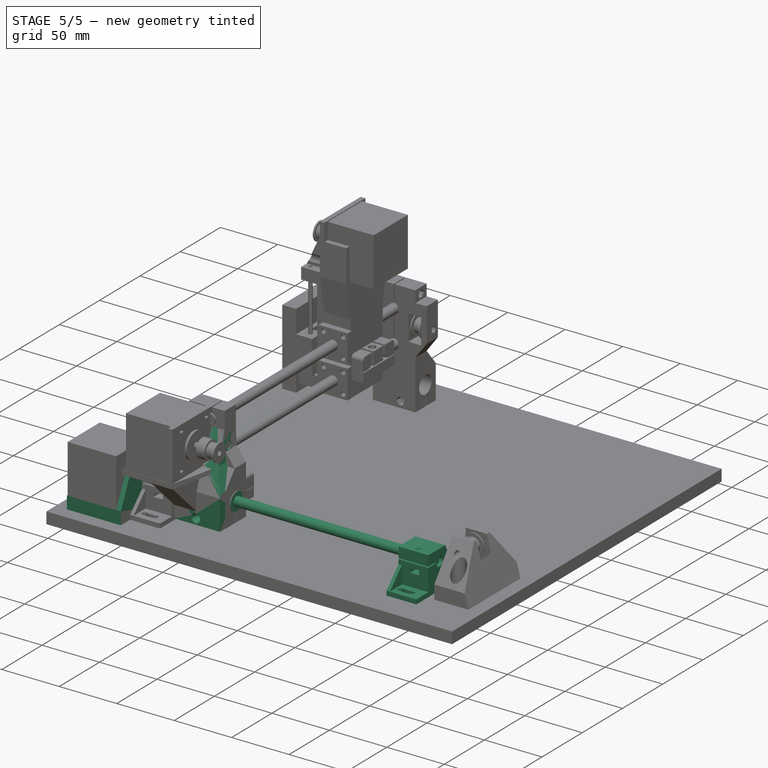
[diagram: stage 5 of 5 — iso view after this stage's code; geometry added in this stage tinted green]
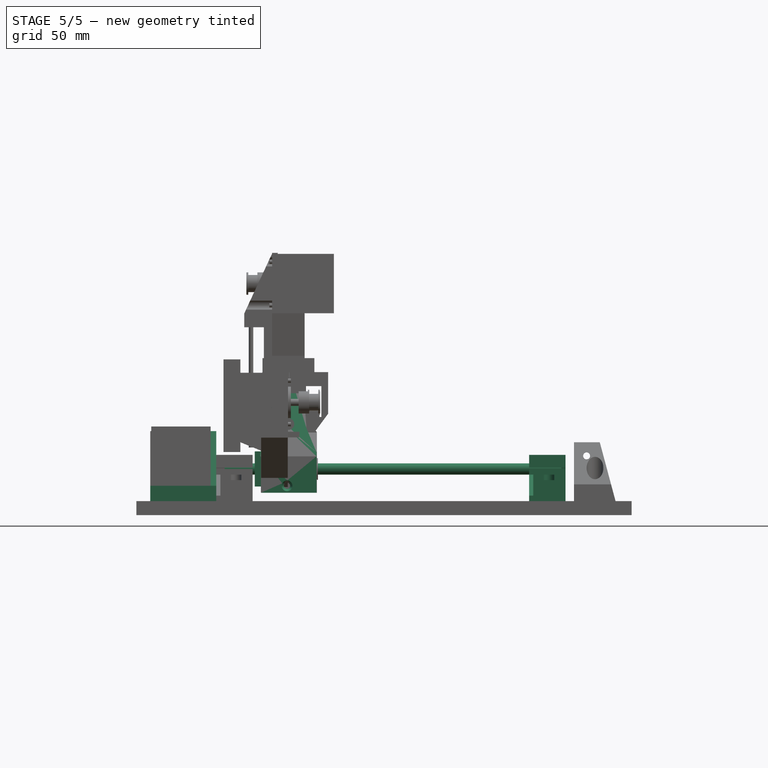
[diagram: stage 5 of 5 — front view after this stage's code; geometry added in this stage tinted green]
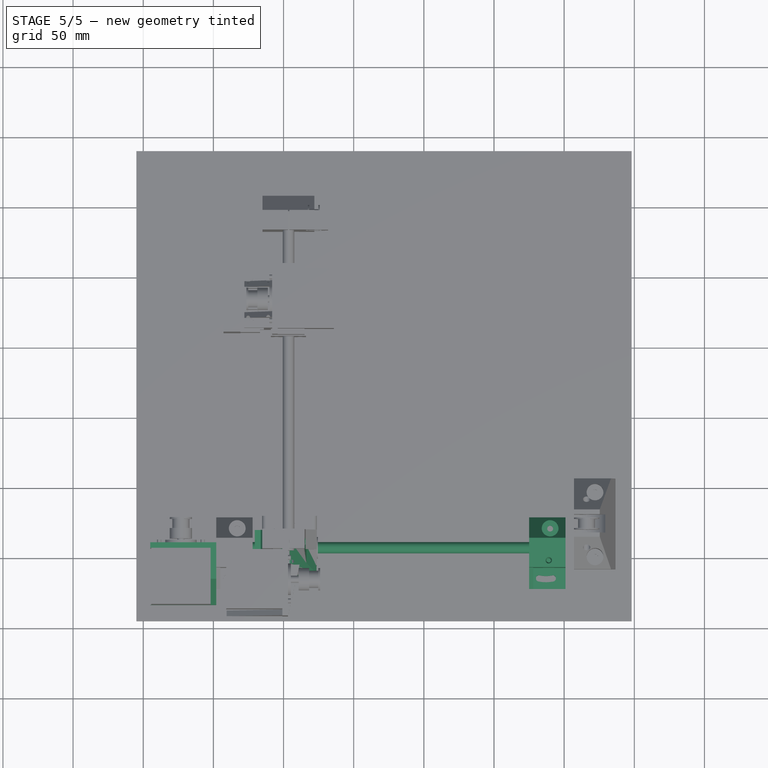
[diagram: stage 5 of 5 — top view after this stage's code; geometry added in this stage tinted green]
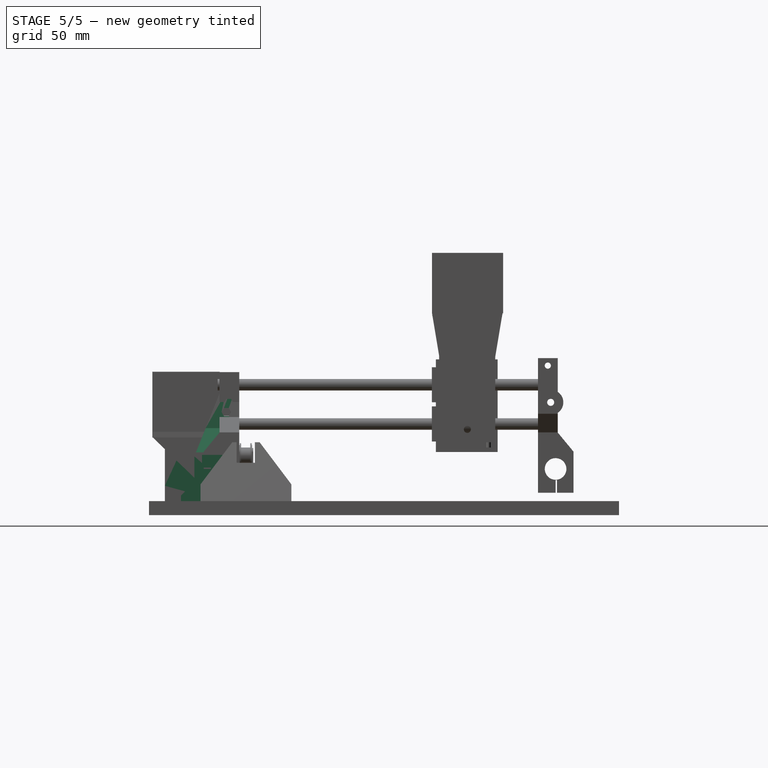
[diagram: stage 5 of 5 — right view after this stage's code; geometry added in this stage tinted green]
FEATURE [Sketcher::SketchObject] Sketch007
  sketch-geometry (4):
    g0: ArcOfCircle CenterX=9 CenterY=15 CenterZ=0 NormalX=0 NormalY=0 NormalZ=1 AngleXU=0 Radius=27.2 StartAngle=6.09831 EndAngle=6.46806
    g1: ArcOfCircle CenterX=9 CenterY=15 CenterZ=0 NormalX=0 NormalY=0 NormalZ=1 AngleXU=0 Radius=22.8 StartAngle=6.06209 EndAngle=6.50428
    g2: ArcOfCircle CenterX=33.4907 CenterY=10.1383 CenterZ=0 NormalX=0 NormalY=0 NormalZ=1 AngleXU=0 Radius=2.25 StartAngle=3.20309 EndAngle=6.22168
    g3: ArcOfCircle CenterX=33.4907 CenterY=19.8617 CenterZ=0 NormalX=0 NormalY=0 NormalZ=1 AngleXU=0 Radius=2.25 StartAngle=0.0615005 EndAngle=3.08009
  constraints (15):
    c: DistanceX(g0) = 9
    c: DistanceY(g0) = 15
    c: Coincident(g1,g0)
    c: Radius(g1) = 22.8
    c: Radius(g0) = 27.2
    c: DistanceY(g-1,g1) = 10
    c: DistanceY(g-1,g0) = 10
    c: DistanceY(g1,g1) = 10
    c: DistanceY(g0,g0) = 10
    c: Coincident(g2,g1)
    c: Coincident(g2,g0)
    c: Radius(g2) = 2.25
    c: Coincident(g3,g1)
    c: Coincident(g0,g3)
    c: Radius(g3) = 2.25
FEATURE [Sketcher::SketchObject] Sketch006
  Placement = pos=(0,0,0) rot=(1,0,0;1.5708rad)
  sketch-geometry (3):
    g0: LineSegment StartX=-22 StartY=-19 StartZ=0 EndX=-7 EndY=-19 EndZ=0
    g1: LineSegment StartX=-7 StartY=-19 StartZ=0 EndX=-7 EndY=-4 EndZ=0
    g2: LineSegment StartX=-7 StartY=-4 StartZ=0 EndX=-22 EndY=-19 EndZ=0
  constraints (9):
    c: Horizontal(g0)
    c: Vertical(g1)
    c: DistanceX(g0) = -7
    c: DistanceY(g0) = -19
    c: Coincident(g0,g1)
    c: Coincident(g2,g0)
    c: DistanceY(g1,g1) = 15
    c: Coincident(g2,g1)
    c: DistanceX(g0,g0) = 15
FEATURE [Sketcher::SketchObject] Sketch008
  Placement = pos=(0,0,0) rot=(1,0,0;1.5708rad)
  sketch-geometry (3):
    g0: LineSegment StartX=-22 StartY=-19 StartZ=0 EndX=-7 EndY=-19 EndZ=0
    g1: LineSegment StartX=-7 StartY=-19 StartZ=0 EndX=-7 EndY=10 EndZ=0
    g2: LineSegment StartX=-7 StartY=10 StartZ=0 EndX=-22 EndY=-19 EndZ=0
  constraints (9):
    c: Horizontal(g0)
    c: Vertical(g1)
    c: DistanceX(g0) = -7
    c: DistanceY(g0) = -19
    c: Coincident(g0,g1)
    c: Coincident(g2,g0)
    c: DistanceY(g1,g1) = 29
    c: Coincident(g2,g1)
    c: DistanceX(g0,g0) = 15
FEATURE [Part::Box] Box018  label="Куб018"
  AttacherType = Attacher::AttachEngine3D
  Height = 4
  Length = 51
  Placement = pos=(-22,0,-23) rot=(0,0,1;0rad)
  Width = 26
FEATURE [Part::Cylinder] Cylinder047  label="Цилиндр044"
  Angle = 360
  AttacherType = Attacher::AttachEngine3D
  Height = 30
  Placement = pos=(0,0,10) rot=(0,0,1;0rad)
  Radius = 6
FEATURE [Part::Box] Box015  label="Куб015"
  AttacherType = Attacher::AttachEngine3D
  Height = 4
  Length = 13
  Placement = pos=(9,7,-8) rot=(0,0,1;0rad)
  Width = 8
FEATURE [Part::Extrusion] Extrude010
  Base = -> Sketch008
  Dir = (0,1,0)
  DirMode = 0
  FaceMakerClass = Part::FaceMakerBullseye
  LengthFwd = 26
  LengthRev = 0
  Placement = pos=(0,-3,0) rot=(0,0,1;0rad)
  Solid = true
  Symmetric = false
FEATURE [Part::Cylinder] Cylinder048  label="Направляющая003"
  Angle = 360
  AttacherType = Attacher::AttachEngine3D
  Height = 240
  Placement = pos=(0,-7,-2e-15) rot=(-1,0,0;1.5708rad)
  Radius = 4.1
FEATURE [Part::Extrusion] Extrude012
  Base = -> Sketch006
  Dir = (0,1,0)
  DirMode = 0
  FaceMakerClass = Part::FaceMakerBullseye
  LengthFwd = 3
  LengthRev = 0
  Placement = pos=(7,4e-15,0) rot=(0,0,1;3.14159rad)
  Solid = true
  Symmetric = false
FEATURE [Part::Cylinder] Cylinder049  label="Цилиндр045"
  Angle = 360
  AttacherType = Attacher::AttachEngine3D
  Height = 10
  Radius = 2.1
FEATURE [Part::Extrusion] Extrude011
  Base = -> Sketch007
  Dir = (0,0,-1)
  DirMode = 0
  FaceMakerClass = Part::FaceMakerBullseye
  LengthFwd = 10
  LengthRev = 0
  Placement = pos=(-12,-3,-17) rot=(0,0,1;0rad)
  Solid = true
  Symmetric = false
FEATURE [Part::Cut] Cut044
  Base = -> Box018
  Placement = pos=(0,-3,0) rot=(0,0,1;0rad)
  Tool = -> Extrude011
FEATURE [Part::Box] Box017  label="Куб017"
  AttacherType = Attacher::AttachEngine3D
  Height = 33
  Length = 21
  Placement = pos=(-7,-3,-23) rot=(0,0,1;0rad)
  Width = 26
FEATURE [Part::Cylinder] Cylinder046  label="Цилиндр043"
  Angle = 360
  AttacherType = Attacher::AttachEngine3D
  Height = 15
  Radius = 1.6
FEATURE [Part::Box] Box016  label="Куб016"
  AttacherType = Attacher::AttachEngine3D
  Height = 1
  Length = 12
  Placement = pos=(3,-6,0) rot=(0,0,1;0rad)
  Width = 35
FEATURE [Part::Cut] Cut045
  Base = -> Box017
  Tool = -> Box016
FEATURE [Part::Cut] Cut041
  Base = -> Cut045
  Tool = -> Cylinder048
FEATURE [Part::Cylinder] Cylinder050  label="Цилиндр046"
  Angle = 360
  AttacherType = Attacher::AttachEngine3D
  Height = 4
  Placement = pos=(9,11,-8) rot=(0,0,1;0rad)
  Radius = 4
FEATURE [Part::MultiFuse] Fusion018
  Shapes = -> [Box015,Cylinder050]
FEATURE [Part::Cone] Cone003  label="Конус003"
  Angle = 360
  AttacherType = Attacher::AttachEngine3D
  Height = 2.5
  Placement = pos=(0,0,15) rot=(0,0,1;0rad)
  Radius1 = 1.6
  Radius2 = 2.5
FEATURE [Part::MultiFuse] Fusion019  label="Саморез003"
  Placement = pos=(-14,12,-29) rot=(0,0,1;0rad)
  Shapes = -> [Cylinder049,Cylinder047]
FEATURE [Part::MultiFuse] Fusion020
  Shapes = -> [Cut041,Cut044,Extrude010]
FEATURE [Part::MultiFuse] Fusion017
  Shapes = -> [Fusion020,Extrude012]
FEATURE [Part::Cut] Cut043
  Base = -> Fusion017
  Tool = -> Fusion018
FEATURE [Part::MultiFuse] Fusion021  label="Винт М3 потай003"
  Placement = pos=(9,11,-7) rot=(0,0,1;0rad)
  Shapes = -> [Cone003,Cylinder046]
FEATURE [Part::Cut] Cut046
  Base = -> Cut043
  Tool = -> Fusion021
FEATURE [Part::Cut] Cut042  label="Стойка направляющей001"
  Base = -> Cut046
  Placement = pos=(278,7,23) rot=(0,0,-1;1.5708rad)
  Tool = -> Fusion019
FEATURE [Part::Cylinder] Cylinder051  label="Направляющая"
  Angle = 360
  AttacherType = Attacher::AttachEngine3D
  Height = 240
  Placement = pos=(58,7,23) rot=(0.57735,-0.57735,0.57735;4.18879rad)
  Radius = 4
FEATURE [Part::Cylinder] Cylinder052  label="Цилиндр047"
  Angle = 360
  AttacherType = Attacher::AttachEngine3D
  Height = 10
  Placement = pos=(4,21,-2) rot=(0,0,1;0rad)
  Radius = 2
FEATURE [Part::Box] Box019  label="Куб019"
  AttacherType = Attacher::AttachEngine3D
  Height = 5.2
  Length = 25
  Width = 25
FEATURE [Part::Cylinder] Cylinder006  label="Цилиндр006"
  Angle = 360
  AttacherType = Attacher::AttachEngine3D
  Height = 10
  Placement = pos=(21,21,-2) rot=(0,0,1;0rad)
  Radius = 2
FEATURE [Part::Cylinder] Cylinder053  label="Цилиндр048"
  Angle = 360
  AttacherType = Attacher::AttachEngine3D
  Height = 40
  Placement = pos=(12.5,12.5,5) rot=(0,0,1;0rad)
  Radius = 7.7
FEATURE [Part::Cylinder] Cylinder054  label="Цилиндр049"
  Angle = 360
  AttacherType = Attacher::AttachEngine3D
  Height = 60
  Placement = pos=(12.5,12.5,-7) rot=(0,0,1;0rad)
  Radius = 4
FEATURE [Part::Cylinder] Cylinder055  label="Цилиндр050"
  Angle = 360
  AttacherType = Attacher::AttachEngine3D
  Height = 10
  Placement = pos=(4,4,-2) rot=(0,0,1;0rad)
  Radius = 2
FEATURE [Part::Cylinder] Cylinder007  label="Цилиндр007"
  Angle = 360
  AttacherType = Attacher::AttachEngine3D
  Height = 10
  Placement = pos=(21,4,-2) rot=(0,0,1;0rad)
  Radius = 2
FEATURE [Part::MultiFuse] Fusion022
  Shapes = -> [Box019,Cylinder053]
FEATURE [Part::Cut] Cut
  Base = -> Fusion022
  Tool = -> Cylinder054
FEATURE [Part::Cut] Cut001
  Base = -> Cut
  Tool = -> Cylinder055
FEATURE [Part::Cut] Cut002
  Base = -> Cut001
  Tool = -> Cylinder052
FEATURE [Part::Cut] Cut003
  Base = -> Cut002
  Tool = -> Cylinder007
FEATURE [Part::Cut] Cut004  label="Линейный подшипник"
  Base = -> Cut003
  Placement = pos=(79.5,19.5,35.5) rot=(0.57735,-0.57735,0.57735;4.18879rad)
  Tool = -> Cylinder006
FEATURE [Part::Box] Box033  label="Куб033"
  AttacherType = Attacher::AttachEngine3D
  Height = 26
  Length = 32
  Placement = pos=(-19.5,5,-17) rot=(0,0,1;0rad)
  Width = 39.7
FEATURE [Part::Cylinder] Cylinder098  label="Направляющая010"
  Angle = 360
  AttacherType = Attacher::AttachEngine3D
  Height = 240
  Placement = pos=(-7.9,25,60) rot=(0.57735,-0.57735,0.57735;4.18879rad)
  Radius = 4.1
FEATURE [Part::Cylinder] Cylinder099  label="Цилиндр088"
  Angle = 360
  AttacherType = Attacher::AttachEngine3D
  Height = 15
  Radius = 1.6
FEATURE [Part::Cylinder] Cylinder096  label="Цилиндр087"
  Angle = 360
  AttacherType = Attacher::AttachEngine3D
  Height = 15
  Radius = 1.6
FEATURE [Part::Cylinder] Cylinder097  label="Направляющая009"
  Angle = 360
  AttacherType = Attacher::AttachEngine3D
  Height = 240
  Placement = pos=(-33,25,32) rot=(0.57735,-0.57735,0.57735;4.18879rad)
  Radius = 4.1
FEATURE [Part::Box] Box034  label="Куб034"
  AttacherType = Attacher::AttachEngine3D
  Height = 48
  Length = 36
  Placement = pos=(-12,24.5,31) rot=(0,0,1;0rad)
  Width = 1
FEATURE [Part::Cylinder] Cylinder101  label="Цилиндр090"
  Angle = 360
  AttacherType = Attacher::AttachEngine3D
  Height = 45
  Placement = pos=(0,47.5,7e-15) rot=(1,0,0;1.5708rad)
  Radius = 7.6
FEATURE [Part::Cylinder] Cylinder100  label="Цилиндр089"
  Angle = 360
  AttacherType = Attacher::AttachEngine3D
  Height = 50
  Placement = pos=(-24,26,-8) rot=(0,1,0;1.5708rad)
  Radius = 2.2
FEATURE [Part::Box] Box035  label="Куб035"
  AttacherType = Attacher::AttachEngine3D
  Height = 14
  Length = 1
  Placement = pos=(-0.5,-2,-20) rot=(0,0,1;0rad)
  Width = 52
FEATURE [Sketcher::SketchObject] Sketch022
  Placement = pos=(0,0,0) rot=(0.57735,0.57735,0.57735;2.0944rad)
  sketch-geometry (4):
    g0: LineSegment StartX=15 StartY=69 StartZ=0 EndX=12.2079 EndY=29.0976 EndZ=0
    g1: LineSegment StartX=12.2079 StartY=29.0976 StartZ=0 EndX=4.204 EndY=9.91667 EndZ=0
    g2: LineSegment StartX=4.204 StartY=9.91667 StartZ=0 EndX=4.204 EndY=69 EndZ=0
    g3: LineSegment StartX=15 StartY=69 StartZ=0 EndX=4.204 EndY=69 EndZ=0
  constraints (12):
    c: DistanceX(g0) = 15
    c: DistanceY(g0) = 69
    c: Distance(g0) = 40
    c: Coincident(g1,g0)
    c: Vertical(g2)
    c: Coincident(g2,g1)
    c: Horizontal(g3)
    c: Coincident(g3,g0)
    c: Coincident(g2,g3)
    c: DistanceX(g1) = 4.204
    c: DistanceY(g1) = 9.91667
    c: Angle(g1,g2) = 0.395317
FEATURE [Part::Extrusion] Extrude028
  Base = -> Sketch022
  Dir = (1,0,0)
  DirMode = 0
  FaceMakerClass = Part::FaceMakerBullseye
  LengthFwd = 50
  LengthRev = 0
  Placement = pos=(-19,0,0) rot=(0,0,1;0rad)
  Solid = true
  Symmetric = false
FEATURE [Part::RegularPolygon] RegularPolygon007  label="Правильный многоугольник007"
  AttacherType = Attacher::AttachEngine3D
  Circumradius = 3.4
  Polygon = 6
FEATURE [Part::RegularPolygon] RegularPolygon008  label="Правильный многоугольник008"
  AttacherType = Attacher::AttachEngine3D
  Circumradius = 3.4
  Polygon = 6
FEATURE [Part::Extrusion] Extrude030
  Base = -> RegularPolygon008
  Dir = (0,0,1)
  DirMode = 0
  FaceMakerClass = Part::FaceMakerBullseye
  LengthFwd = 15
  LengthRev = 0
  Placement = pos=(10.8,5.2,54.5) rot=(-1,0,0;1.5708rad)
  Solid = true
  Symmetric = false
FEATURE [Part::Extrusion] Extrude026
  Base = -> RegularPolygon007
  Dir = (0,0,1)
  DirMode = 0
  FaceMakerClass = Part::FaceMakerBullseye
  LengthFwd = 15
  LengthRev = 0
  Placement = pos=(7.8,6.8,40.5) rot=(-1,0,0;1.5708rad)
  Solid = true
  Symmetric = false
FEATURE [Sketcher::SketchObject] Sketch020
  Placement = pos=(0,0,0) rot=(1,0,0;1.5708rad)
  sketch-geometry (4):
    g0: LineSegment StartX=-15 StartY=9 StartZ=0 EndX=17 EndY=9 EndZ=0
    g1: LineSegment StartX=17 StartY=9 StartZ=0 EndX=17 EndY=69 EndZ=0
    g2: LineSegment StartX=17 StartY=69 StartZ=0 EndX=9 EndY=69 EndZ=0
    g3: LineSegment StartX=9 StartY=69 StartZ=0 EndX=-15 EndY=9 EndZ=0
  constraints (12):
    c: Horizontal(g0)
    c: DistanceX(g0) = -15
    c: DistanceY(g0) = 9
    c: DistanceX(g0,g0) = 32
    c: Vertical(g1)
    c: Coincident(g1,g0)
    c: Horizontal(g2)
    c: DistanceY(g1,g1) = 60
    c: Coincident(g2,g1)
    c: DistanceX(g2,g2) = 8
    c: Coincident(g3,g2)
    c: Coincident(g3,g0)
FEATURE [Part::Extrusion] Extrude027
  Base = -> Sketch020
  Dir = (0,1,0)
  DirMode = 0
  FaceMakerClass = Part::FaceMakerBullseye
  LengthFwd = 40
  LengthRev = 0
  Placement = pos=(0,5,0) rot=(0,0,1;0rad)
  Solid = true
  Symmetric = false
FEATURE [Part::Cut] Cut089
  Base = -> Extrude027
  Tool = -> Extrude028
FEATURE [Part::Cone] Cone010  label="Конус010"
  Angle = 360
  AttacherType = Attacher::AttachEngine3D
  Height = 3.5
  Placement = pos=(0,0,15) rot=(0,0,1;0rad)
  Radius1 = 1.6
  Radius2 = 3
FEATURE [Part::MultiFuse] Fusion044  label="Винт М3 потай009"
  Placement = pos=(7.8,19,40.5) rot=(-1,0,0;1.5708rad)
  Shapes = -> [Cone010,Cylinder096]
FEATURE [Part::Cone] Cone012  label="Конус012"
  Angle = 360
  AttacherType = Attacher::AttachEngine3D
  Height = 5
  Placement = pos=(-24,26,-8) rot=(0,-1,0;1.5708rad)
  Radius1 = 2.2
  Radius2 = 4
FEATURE [Part::MultiFuse] Fusion042  label="Винт М4х50 пот002"
  Placement = pos=(9,0,-4) rot=(0,0,1;0rad)
  Shapes = -> [Cone012,Cylinder100]
FEATURE [Part::Cut] Cut092
  Base = -> Box033
  Tool = -> Fusion042
FEATURE [Part::Cone] Cone011  label="Конус011"
  Angle = 360
  AttacherType = Attacher::AttachEngine3D
  Height = 3.5
  Placement = pos=(0,0,15) rot=(0,0,1;0rad)
  Radius1 = 1.6
  Radius2 = 3
FEATURE [Part::MultiFuse] Fusion041  label="Винт М3 потай008"
  Placement = pos=(10.8,18,54.5) rot=(-1,0,0;1.5708rad)
  Shapes = -> [Cone011,Cylinder099]
FEATURE [Sketcher::SketchObject] Sketch021
  Placement = pos=(0,0,0) rot=(0.57735,0.57735,0.57735;2.0944rad)
  sketch-geometry (4):
    g0: LineSegment StartX=15 StartY=69 StartZ=0 EndX=12.2079 EndY=29.0976 EndZ=0
    g1: LineSegment StartX=12.2079 StartY=29.0976 StartZ=0 EndX=4.204 EndY=9.91667 EndZ=0
    g2: LineSegment StartX=4.204 StartY=9.91667 StartZ=0 EndX=4.204 EndY=69 EndZ=0
    g3: LineSegment StartX=15 StartY=69 StartZ=0 EndX=4.204 EndY=69 EndZ=0
  constraints (12):
    c: DistanceX(g0) = 15
    c: DistanceY(g0) = 69
    c: Distance(g0) = 40
    c: Coincident(g1,g0)
    c: Vertical(g2)
    c: Coincident(g2,g1)
    c: Horizontal(g3)
    c: Coincident(g3,g0)
    c: Coincident(g2,g3)
    c: DistanceX(g1) = 4.204
    c: DistanceY(g1) = 9.91667
    c: Angle(g1,g2) = 0.395317
FEATURE [Part::Extrusion] Extrude029
  Base = -> Sketch021
  Dir = (1,0,0)
  DirMode = 0
  FaceMakerClass = Part::FaceMakerBullseye
  LengthFwd = 50
  LengthRev = 0
  Placement = pos=(28,50,0) rot=(0,0,1;3.14159rad)
  Solid = true
  Symmetric = false
FEATURE [Part::Cut] Cut083
  Base = -> Cut089
  Tool = -> Extrude029
FEATURE [Part::Cut] Cut090
  Base = -> Cut083
  Tool = -> Cylinder097
FEATURE [Part::Cut] Cut082
  Base = -> Cut090
  Tool = -> Cylinder098
FEATURE [Part::Cut] Cut088
  Base = -> Cut082
  Tool = -> Box034
FEATURE [Part::Cut] Cut084
  Base = -> Cut088
  Tool = -> Extrude030
FEATURE [Part::Cut] Cut085
  Base = -> Cut084
  Tool = -> Extrude026
FEATURE [Part::Cut] Cut086
  Base = -> Cut085
  Tool = -> Fusion044
FEATURE [Part::Cut] Cut087
  Base = -> Cut086
  Placement = pos=(-4.5,0,0) rot=(0,0,1;0rad)
  Tool = -> Fusion041
FEATURE [Part::RegularPolygon] RegularPolygon009  label="Правильный многоугольник009"
  AttacherType = Attacher::AttachEngine3D
  Circumradius = 4.3
  Polygon = 6
FEATURE [Part::Extrusion] Extrude031  label="Гайка М006"
  Base = -> RegularPolygon009
  Dir = (0,0,1)
  DirMode = 0
  FaceMakerClass = Part::FaceMakerBullseye
  LengthFwd = 8
  LengthRev = 0
  Placement = pos=(5,26,-12) rot=(0,1,0;1.5708rad)
  Solid = true
  Symmetric = false
FEATURE [Part::Cut] Cut091
  Base = -> Cut092
  Tool = -> Extrude031
FEATURE [Part::Cut] Cut093
  Base = -> Cut091
  Tool = -> Box035
FEATURE [Part::Cut] Cut094
  Base = -> Cut093
  Tool = -> Cylinder101
FEATURE [Part::MultiFuse] Fusion043
  Placement = pos=(128.509,7.03474,23) rot=(0,0,1;1.5708rad)
  Shapes = -> [Cut094,Cut087]
FEATURE [Part::Box] Box036  label="Куб036"
  AttacherType = Attacher::AttachEngine3D
  Height = 11
  Length = 43
  Placement = pos=(9,0,0) rot=(0,0,1;0rad)
  Width = 40
FEATURE [Part::Box] Box037  label="Куб037"
  AttacherType = Attacher::AttachEngine3D
  Height = 50
  Length = 47
  Placement = pos=(52,-5e-15,0) rot=(0,0,1;3.14159rad)
  Width = 4
FEATURE [Sketcher::SketchObject] Sketch024
  Placement = pos=(0,0,0) rot=(0.57735,0.57735,0.57735;2.0944rad)
  sketch-geometry (5):
    g0: LineSegment StartX=0 StartY=0 StartZ=0 EndX=0 EndY=50 EndZ=0
    g1: LineSegment StartX=0 StartY=50 StartZ=0 EndX=22 EndY=50 EndZ=0
    g2: LineSegment StartX=0 StartY=0 StartZ=0 EndX=40 EndY=0 EndZ=0
    g3: LineSegment StartX=40 StartY=0 StartZ=0 EndX=40 EndY=11 EndZ=0
    g4: LineSegment StartX=40 StartY=11 StartZ=0 EndX=22 EndY=50 EndZ=0
  constraints (14):
    c: Vertical(g0)
    c: Coincident(g0,g-1)
    c: DistanceY(g0,g0) = 50
    c: Horizontal(g1)
    c: Coincident(g1,g0)
    c: DistanceX(g1,g1) = 22
    c: Horizontal(g2)
    c: Coincident(g2,g0)
    c: DistanceX(g2) = 40
    c: Vertical(g3)
    c: Coincident(g2,g3)
    c: DistanceY(g3,g3) = 11
    c: Coincident(g4,g1)
    c: Coincident(g3,g4)
FEATURE [Part::Extrusion] Extrude
  Base = -> Sketch024
  Dir = (-1,0,0)
  DirMode = 0
  FaceMakerClass = Part::FaceMakerBullseye
  LengthFwd = 4
  LengthRev = 0
  Placement = pos=(9,0,0) rot=(0,0,1;0rad)
  Solid = true
  Symmetric = false
FEATURE [Part::MultiFuse] Fusion045
  Shapes = -> [Extrude,Box037,Box036]
FEATURE [Part::Cylinder] Cylinder102  label="Цилиндр091"
  Angle = 360
  AttacherType = Attacher::AttachEngine3D
  Height = 30
  Placement = pos=(0,0,10) rot=(0,0,1;0rad)
  Radius = 6.2
FEATURE [Part::Cylinder] Cylinder103  label="Цилиндр092"
  Angle = 360
  AttacherType = Attacher::AttachEngine3D
  Height = 10
  Radius = 2.1
FEATURE [Part::MultiFuse] Fusion046  label="Саморез004"
  Placement = pos=(22,12,-5) rot=(0,0,1;0rad)
  Shapes = -> [Cylinder103,Cylinder102]
FEATURE [Part::Cylinder] Cylinder104  label="Цилиндр093"
  Angle = 360
  AttacherType = Attacher::AttachEngine3D
  Height = 30
  Placement = pos=(0,0,10) rot=(0,0,1;0rad)
  Radius = 6.2
FEATURE [Part::Cylinder] Cylinder105  label="Цилиндр094"
  Angle = 360
  AttacherType = Attacher::AttachEngine3D
  Height = 10
  Radius = 2.1
FEATURE [Part::MultiFuse] Fusion047  label="Саморез005"
  Placement = pos=(41,29,-5) rot=(0,0,1;0rad)
  Shapes = -> [Cylinder105,Cylinder104]
FEATURE [Part::Cut] Cut095
  Base = -> Fusion045
  Tool = -> Fusion047
FEATURE [Part::Cut] Cut096
  Base = -> Cut095
  Tool = -> Fusion046
FEATURE [Part::Cylinder] Cylinder106  label="Цилиндр095"
  Angle = 360
  AttacherType = Attacher::AttachEngine3D
  Height = 24
  Placement = pos=(21.15,-2,21.15) rot=(1,0,0;1.5708rad)
  Radius = 2.5
FEATURE [Part::Box] Box038  label="Куб038"
  AttacherType = Attacher::AttachEngine3D
  Height = 42.3
  Length = 42.3
  Width = 39.8
FEATURE [Part::Cylinder] Cylinder107  label="Цилиндр096"
  Angle = 360
  AttacherType = Attacher::AttachEngine3D
  Height = 6
  Placement = pos=(21.15,0,21.15) rot=(1,0,0;1.5708rad)
  Radius = 11.3
FEATURE [Part::MultiFuse] Fusion048
  Shapes = -> [Box038,Cylinder107]
FEATURE [Part::MultiFuse] Fusion049  label="Motor001"
  Shapes = -> [Fusion048,Cylinder106]
FEATURE [Part::Cylinder] Cylinder108  label="Цилиндр097"
  Angle = 360
  AttacherType = Attacher::AttachEngine3D
  Height = 10
  Placement = pos=(5.65,0,36.65) rot=(1,0,0;1.5708rad)
  Radius = 1.8
FEATURE [Part::Cylinder] Cylinder109  label="Цилиндр098"
  Angle = 360
  AttacherType = Attacher::AttachEngine3D
  Height = 10
  Placement = pos=(5.65,0,5.65) rot=(1,0,0;1.5708rad)
  Radius = 1.8
FEATURE [Part::MultiFuse] Fusion050  label="NEMA-018"
  Placement = pos=(9,0,11) rot=(0,0,1;0rad)
  Shapes = -> [Fusion049,Cylinder108,Cylinder111,Cylinder109,Cylinder110]
FEATURE [Part::Cut] Cut097  label="NEMA Cronstain"
  Base = -> Cut096
  Placement = pos=(57,6.5,0) rot=(0,0,1;3.14159rad)
  Tool = -> Fusion050
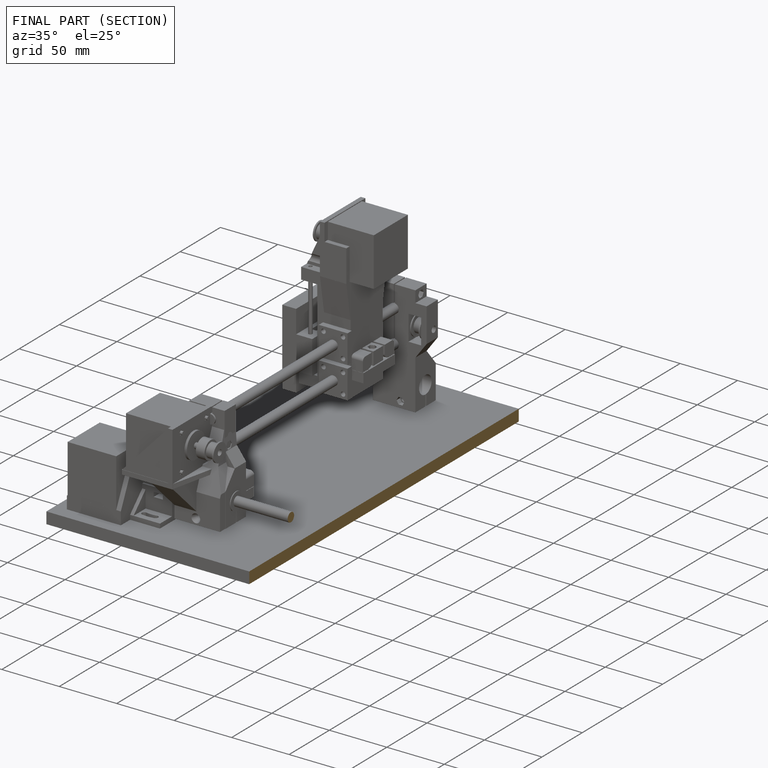
[diagram: finished part — half-section view (interior)]
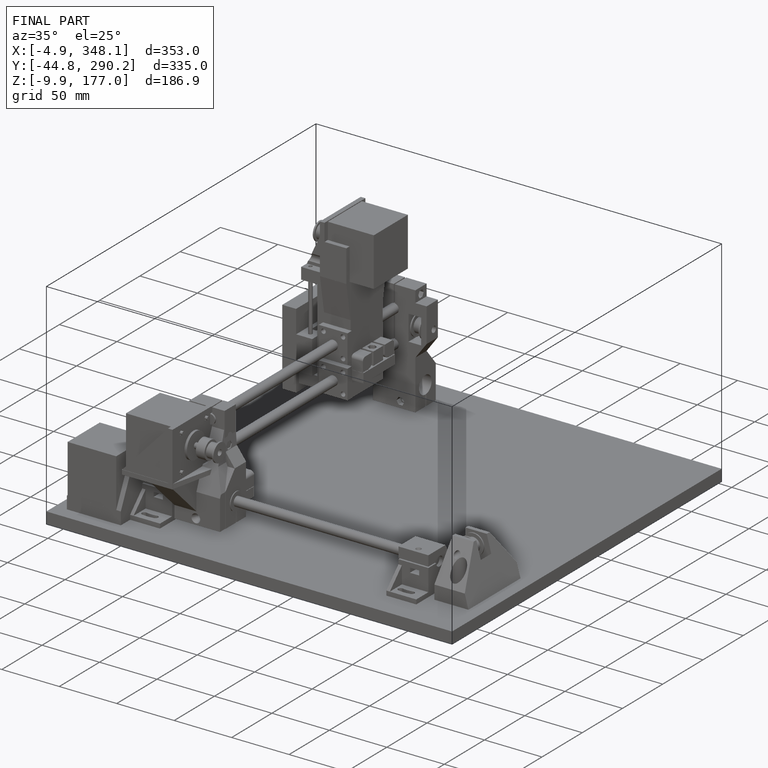
[diagram: finished part — iso view with bounding-box wireframe]
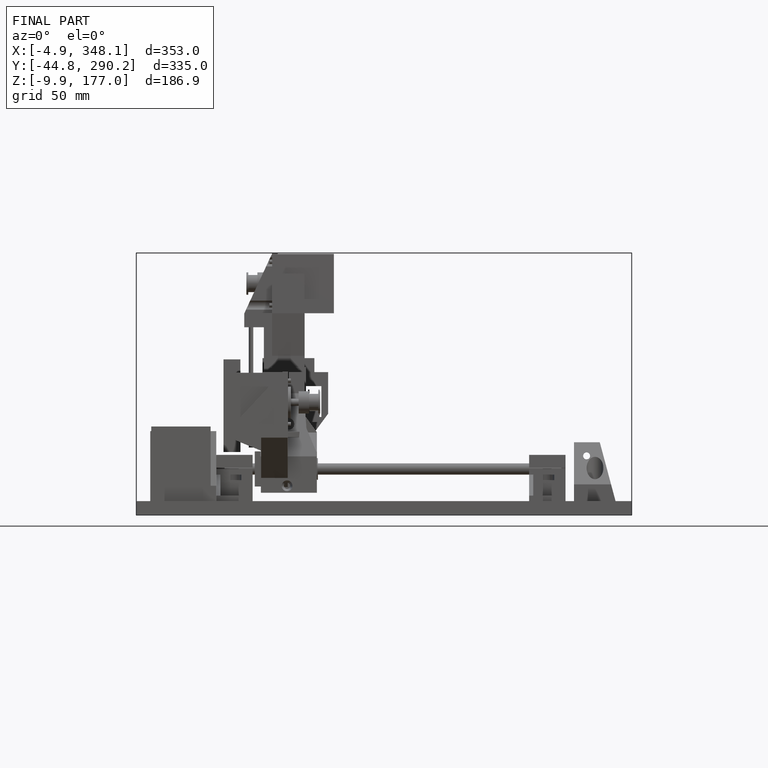
[diagram: finished part — front view with bounding-box wireframe]
